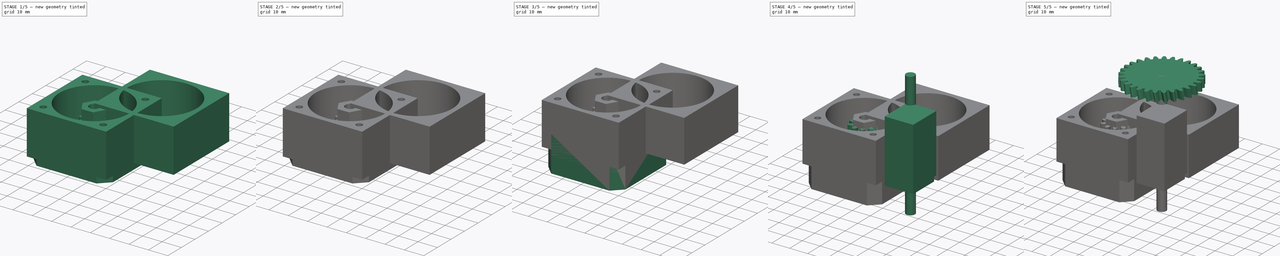
[diagram: build sequence overview — one tinted view per stage of 5, left to right]
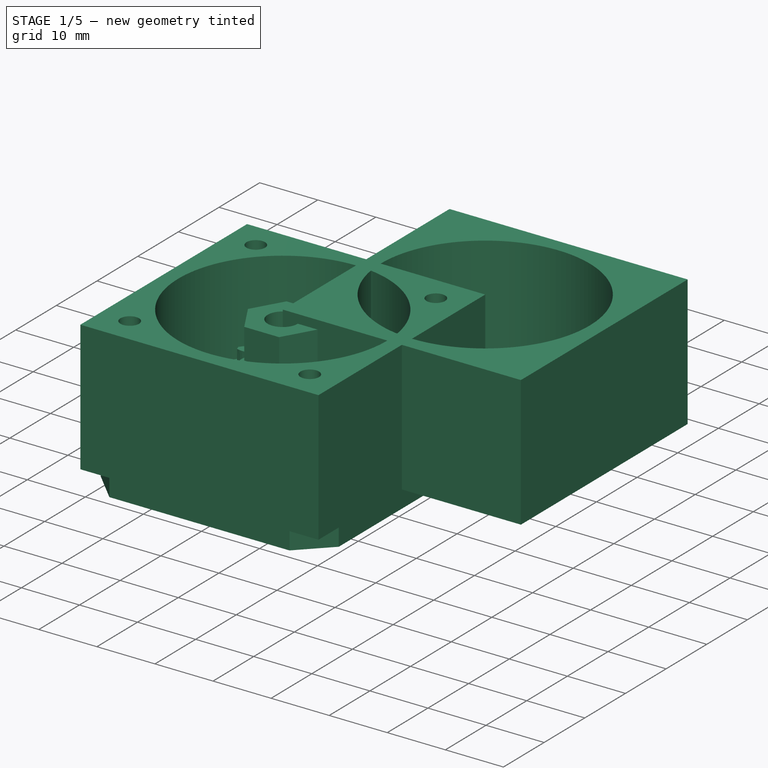
[diagram: stage 1 of 5 — iso view after this stage's code; geometry added in this stage tinted green]
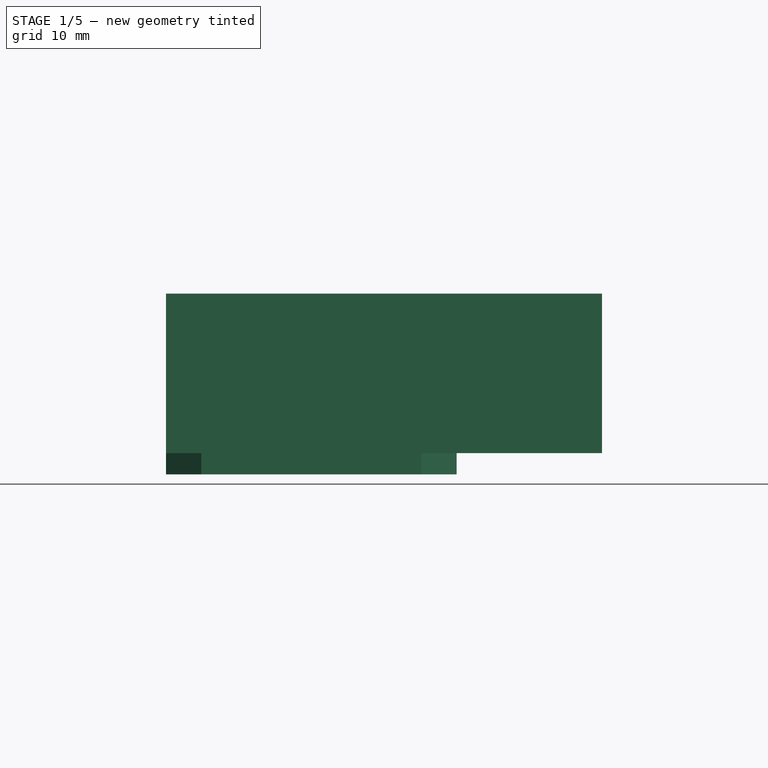
[diagram: stage 1 of 5 — front view after this stage's code; geometry added in this stage tinted green]
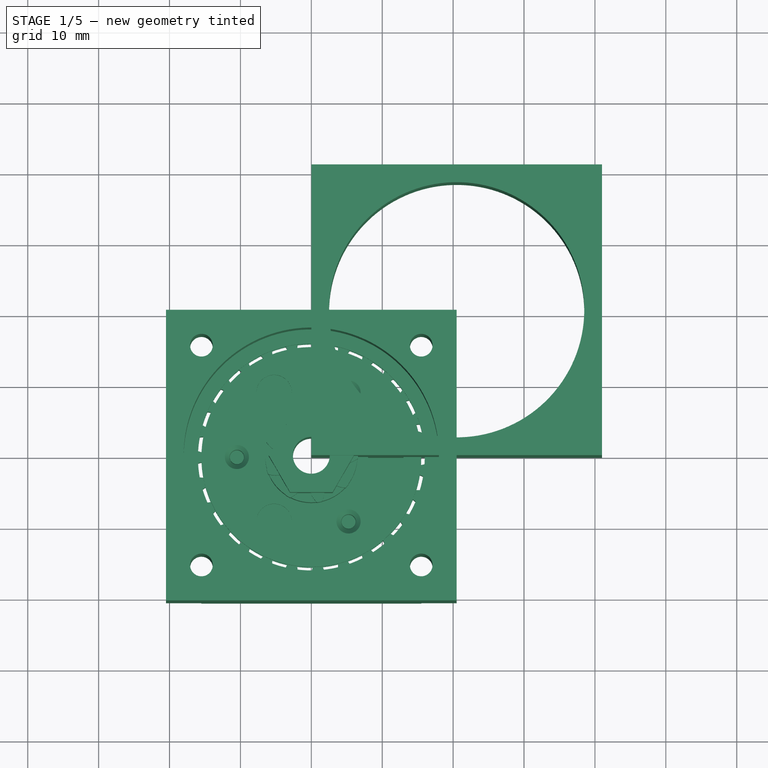
[diagram: stage 1 of 5 — top view after this stage's code; geometry added in this stage tinted green]
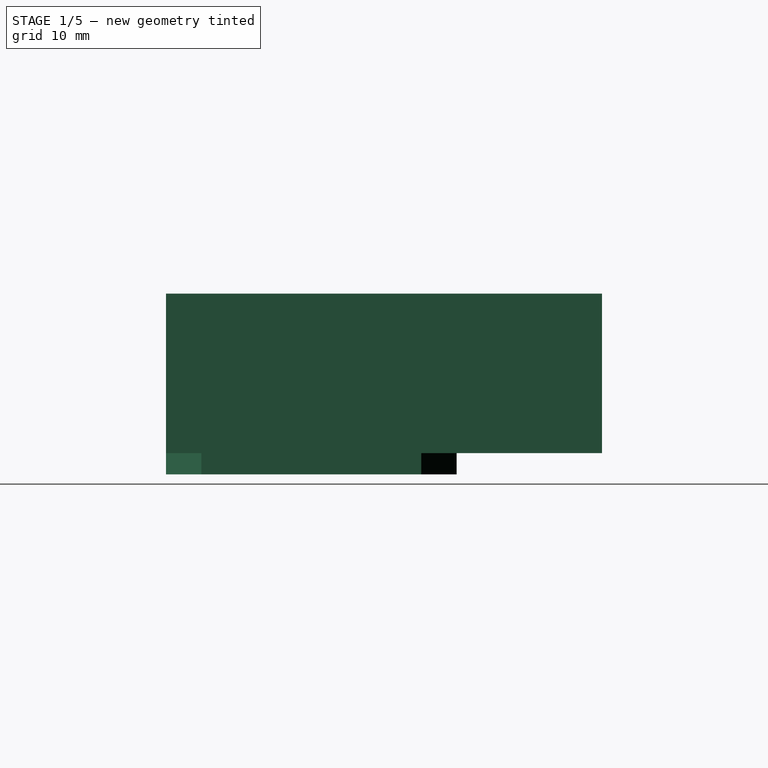
[diagram: stage 1 of 5 — right view after this stage's code; geometry added in this stage tinted green]
FCSTD DOCUMENT  (FreeCAD 0.17R12284 (Git))
Label: planetary_gear_v1
License: All rights reserved
LicenseURL: http://en.wikipedia.org/wiki/All_rights_reserved
objects: Part::Feature×152, Part::Cylinder×110, Part::MultiFuse×89, Part::Cut×69, Part::FeaturePython×12, App::Part×9, Part::Extrusion×8, Part::Box×7, Part::RegularPolygon×1, Sketcher::SketchObject×1, Part::Chamfer×1
note: 450 computed .brp shape members not serialized (recipe doc carries the construction recipe); baked Part::Feature solids carry a one-line shape summary decoded from their .brp

FEATURE [App::Part] Part004
  Group = -> [Cut044,Cut050,Cylinder014005098,Cylinder014005100,Cylinder014005099,Cylinder014005101,Cylinder014005105,Cylinder014005108,Cylinder014005109,Screw_solid034,Cylinder014005104,Screw_solid038,Cylinder014005102,Screw_solid036,Fusion059,Fusion058,Fusion065,Fusion062,Fusion064,Cut008_solid014,Cut008_solid012,Cut008_solid013,Screw_solid033,Cylinder014005107,Cylinder014005103,Screw_solid037,Screw_solid035,+26 more]
  License = CC BY 3.0
  LicenseURL = http://creativecommons.org/licenses/by/3.0/
  Origin = -> Origin004
  Placement = pos=(0,0,31.5) rot=(0,0,1;0rad)
FEATURE [Part::Feature] Cut007_solid006  label="Sun007"
  Placement = pos=(0,0,10.5) rot=(0,0,1;0rad)
  shape: bbox 12.9 x 13.1 x 5 mm, 57 faces (baked)
FEATURE [Part::FeaturePython] InvoluteGear013  # WARN: FeaturePython — macro-defined, semantics opaque (R4)
  backlash = 0
  beta = 0
  clearance = 0.25
  double_helix = false
  head = 0
  height = 5.5
  module = 1.2
  numpoints = 6
  pressure_angle = 20
  reversed_backlash = false
  shift = 0
  simple = false
  teeth = 27
  undercut = false
FEATURE [Part::Feature] Cylinder014005118  label="Válec119"
  shape: bbox 5 x 5 x 7 mm, 3 faces (baked)
FEATURE [Part::Cylinder] Cylinder014005119  label="Válec120"
  Angle = 360
  AttacherType = Attacher::AttachEngine3D
  Height = 1.5
  Radius = 20
FEATURE [Part::Cylinder] Cylinder014005120  label="Válec121"
  Angle = 360
  AttacherType = Attacher::AttachEngine3D
  Height = 5.5
  Radius = 20
FEATURE [Part::Cut] Cut051  label="ring 006"
  Base = -> Cylinder014005120
  Tool = -> InvoluteGear013
FEATURE [Part::Cylinder] Cylinder014005121  label="Válec122"
  Angle = 360
  AttacherType = Attacher::AttachEngine3D
  Height = 1.5
  Radius = 16
FEATURE [Part::Cylinder] Cylinder014005122  label="Válec123"
  Angle = 360
  AttacherType = Attacher::AttachEngine3D
  Height = 10
  Placement = pos=(10.5,0,0) rot=(0,0,1;0rad)
  Radius = 8
FEATURE [Part::Cylinder] Cylinder014005123  label="Válec124"
  Angle = 360
  AttacherType = Attacher::AttachEngine3D
  Height = 1.5
  Radius = 16
FEATURE [Part::Cylinder] Cylinder014005124  label="Válec125"
  Angle = 360
  AttacherType = Attacher::AttachEngine3D
  Height = 1.5
  Radius = 20
FEATURE [Part::Cut] Cut053  label="Ring012"
  Base = -> Cylinder014005124
  Placement = pos=(0,0,-1.5) rot=(0,0,1;0rad)
  Tool = -> Cylinder014005123
FEATURE [Part::Cylinder] Cylinder014005125  label="Unasec vrch007"
  Angle = 360
  AttacherType = Attacher::AttachEngine3D
  Height = 1.5
  Placement = pos=(0,0,5.5) rot=(0,0,1;0rad)
  Radius = 15.5
FEATURE [Part::Cylinder] Cylinder014005126  label="Válec126"
  Angle = 360
  AttacherType = Attacher::AttachEngine3D
  Height = 4
  Placement = pos=(0,0,7) rot=(0,0,1;0rad)
  Radius = 6.5
FEATURE [Part::Cylinder] Cylinder014005127  label="Válec127"
  Angle = 360
  AttacherType = Attacher::AttachEngine3D
  Height = 18
  Radius = 2.6
FEATURE [Part::Feature] Cylinder014005128  label="Válec128"
  Placement = pos=(0,0,0) rot=(0,0,1;2.0944rad)
  shape: bbox 5 x 5 x 7 mm, 3 faces (baked)
FEATURE [Part::Feature] Screw_solid039  label="M2x4-Screw (Solid)039"
  Placement = pos=(0,0,0) rot=(0,0,1;1.0472rad)
  shape: bbox 3.6 x 3.6 x 4 mm, 12 faces (baked)
FEATURE [Part::Feature] Screw_solid040  label="M2x4-Screw (Solid)040"
  Placement = pos=(0,0,0) rot=(0,0,1;3.14159rad)
  shape: bbox 3.6 x 3.6 x 4 mm, 12 faces (baked)
FEATURE [Part::Feature] Screw_solid041  label="M2x4-Screw (Solid)041"
  Placement = pos=(0,0,0) rot=(0,0,-1;1.0472rad)
  shape: bbox 3.6 x 3.6 x 4 mm, 12 faces (baked)
FEATURE [Part::Feature] Cylinder014005129  label="Válec129"
  shape: bbox 5 x 5 x 7 mm, 3 faces (baked)
FEATURE [Part::Feature] Cylinder014005130  label="Válec130"
  Placement = pos=(0,0,0) rot=(0,0,1;4.18879rad)
  shape: bbox 5 x 5 x 7 mm, 3 faces (baked)
FEATURE [Part::Feature] Screw_solid042  label="M2x4-Screw (Solid)042"
  Placement = pos=(0,0,0) rot=(0,0,1;3.14159rad)
  shape: bbox 3.6 x 3.6 x 4 mm, 12 faces (baked)
FEATURE [Part::Feature] Cylinder014005131  label="Válec131"
  Placement = pos=(0,0,0) rot=(0,0,1;4.18879rad)
  shape: bbox 16 x 16 x 10 mm, 3 faces (baked)
FEATURE [Part::Feature] Cylinder014005132  label="Válec132"
  Placement = pos=(0,0,0) rot=(0,0,1;4.18879rad)
  shape: bbox 5 x 5 x 7 mm, 3 faces (baked)
FEATURE [Part::MultiFuse] Fusion075
  Shapes = -> [Cylinder014005132,Cylinder014005118,Cylinder014005128]
FEATURE [Part::Feature] Cut008_solid015  label="Planet016"
  Placement = pos=(0,0,0) rot=(0,0,1;2.0944rad)
  shape: bbox 12.9 x 13.1 x 5 mm, 57 faces (baked)
FEATURE [Part::Cut] Cut054  label="Ring013"
  Base = -> Cylinder014005119
  Placement = pos=(0,0,5.5) rot=(0,0,1;0rad)
  Tool = -> Cylinder014005121
FEATURE [Part::MultiFuse] Fusion076  label="Ring zaklad Fin005"
  Shapes = -> [Cut051,Cut054,Cut053]
FEATURE [Part::Cylinder] Cylinder014005133  label="unasec stred006"
  Angle = 360
  AttacherType = Attacher::AttachEngine3D
  Height = 7
  Placement = pos=(0,0,-1.5) rot=(0,0,1;0rad)
  Radius = 13.5
FEATURE [Part::Cylinder] Cylinder014005134  label="unasec spodek013"
  Angle = 360
  AttacherType = Attacher::AttachEngine3D
  Height = 1.5
  Placement = pos=(0,0,-1.5) rot=(0,0,1;0rad)
  Radius = 15.5
FEATURE [Part::MultiFuse] Fusion077
  Shapes = -> [Cylinder014005133,Cylinder014005134]
FEATURE [Part::Cylinder] Cylinder014005135  label="Válec133"
  Angle = 360
  AttacherType = Attacher::AttachEngine3D
  Height = 7
  Radius = 2.6
FEATURE [Part::MultiFuse] Fusion079
  Placement = pos=(0,0,1) rot=(0,0,1;0rad)
  Shapes = -> [Fusion075,Cylinder014005135]
FEATURE [Part::Cylinder] Cylinder014005136  label="Válec134"
  Angle = 360
  AttacherType = Attacher::AttachEngine3D
  Height = 10
  Placement = pos=(0,0,-3) rot=(0,0,1;0rad)
  Radius = 7
FEATURE [Part::Feature] Cylinder014005138  label="Válec136"
  Placement = pos=(0,0,0) rot=(0,0,1;2.0944rad)
  shape: bbox 16 x 16 x 10 mm, 3 faces (baked)
FEATURE [Part::MultiFuse] Fusion069
  Shapes = -> [Cylinder014005136,Cylinder014005122,Cylinder014005131,Cylinder014005138]
FEATURE [Part::Cut] Cut052  label="unasec spodek012"
  Base = -> Fusion077
  Tool = -> Fusion069
FEATURE [Part::Feature] Cut005_solid001_cs006
  Placement = pos=(0,0,-11.25) rot=(0,0,1;0rad)
  shape: bbox 41 x 41 x 3e-07 mm, 0 faces, 0 solids (baked)
FEATURE [Part::Extrusion] Extrude005  label="box005"
  Base = -> Cut005_solid001_cs006
  Dir = (0,0,1)
  DirMode = 2
  FaceMakerClass = Part::FaceMakerBullseye
  LengthFwd = 10.5
  LengthRev = 0
  Placement = pos=(0,0,-3) rot=(0,0,1;0rad)
  Solid = true
  Symmetric = false
FEATURE [Part::Feature] Screw_solid043  label="M2x4-Screw (Solid)043"
  Placement = pos=(0,0,0) rot=(0,0,-1;1.0472rad)
  shape: bbox 3.6 x 3.6 x 4 mm, 12 faces (baked)
FEATURE [Part::MultiFuse] Fusion071  label="srouby014"
  Placement = pos=(0,0,0.5) rot=(0,0,1;0rad)
  Shapes = -> [Screw_solid039,Screw_solid043,Screw_solid040]
FEATURE [Part::Cut] Cut057  label="unasec vrch007"
  Base = -> Cylinder014005125
  Tool = -> Fusion071
FEATURE [Part::Cut] Cut058  label="Unasec Vrch zaklad007"
  Base = -> Cut057
  Tool = -> Fusion079
FEATURE [Part::MultiFuse] Fusion070  label="unasec vrhch 007"
  Shapes = -> [Cut058,Cut007_solid006,Cylinder014005126]
FEATURE [Part::Cut] Cut055  label="Unasec + Sun005 old"
  Base = -> Fusion070
  Tool = -> Cylinder014005127
FEATURE [Part::Feature] Cut008_solid017  label="Planet018"
  shape: bbox 12.9 x 13.1 x 5 mm, 57 faces (baked)
FEATURE [Part::Feature] Screw_solid044  label="M2x4-Screw (Solid)044"
  Placement = pos=(0,0,0) rot=(0,0,1;1.0472rad)
  shape: bbox 3.6 x 3.6 x 4 mm, 12 faces (baked)
FEATURE [Part::MultiFuse] Fusion073  label="srouby015"
  Shapes = -> [Screw_solid044,Screw_solid041,Screw_solid042]
FEATURE [Part::Cut] Cut056  label="Uasec spodek006"
  Base = -> Cut052
  Tool = -> Fusion073
FEATURE [Part::Feature] Cut061001  label="SUN I Final"
  shape: bbox 24 x 24 x 12.25 mm, 99 faces (baked)
FEATURE [App::Part] Part001
  Group = -> [Cut008_solid,Cut008_solid001,Cut008_solid002,Cylinder010,Cylinder,Cylinder013,Fusion001,Fusion002,Cylinder014005006,Cylinder014005005,Cylinder014002,Cylinder014001,Cylinder014005004,Cylinder011,Cut004,Cut006,Screw_solid005,Screw_solid003,Screw_solid004,Fusion006,Fusion004,Fusion008,Cylinder014005034,Cylinder014005035,Cut007_solid001,Cut012,Cut011,Screw_solid007,Screw_solid008,Cylinder014005014,+29 more]
  License = CC BY 3.0
  LicenseURL = http://creativecommons.org/licenses/by/3.0/
  Origin = -> Origin001
FEATURE [Part::Cylinder] Cylinder014005145  label="Válec143"
  Angle = 360
  AttacherType = Attacher::AttachEngine3D
  Height = 7
  Radius = 2.6
FEATURE [Part::Cylinder] Cylinder014005146  label="Unasec vrch008"
  Angle = 360
  AttacherType = Attacher::AttachEngine3D
  Height = 1.5
  Placement = pos=(0,0,5.5) rot=(0,0,1;0rad)
  Radius = 15.5
FEATURE [Part::Cylinder] Cylinder014005147  label="Válec144"
  Angle = 360
  AttacherType = Attacher::AttachEngine3D
  Height = 6
  Placement = pos=(0,0,7) rot=(0,0,1;0rad)
  Radius = 6.5
FEATURE [Part::Cylinder] Cylinder014005148  label="Válec145"
  Angle = 360
  AttacherType = Attacher::AttachEngine3D
  Height = 22
  Radius = 2.6
FEATURE [Part::Feature] Screw_solid045  label="M2x4-Screw (Solid)045"
  Placement = pos=(0,0,0) rot=(0,0,1;3.14159rad)
  shape: bbox 3.6 x 3.6 x 4 mm, 12 faces (baked)
FEATURE [Part::Feature] Screw_solid046  label="M2x4-Screw (Solid)046"
  Placement = pos=(0,0,0) rot=(0,0,1;1.0472rad)
  shape: bbox 3.6 x 3.6 x 4 mm, 12 faces (baked)
FEATURE [Part::Feature] Screw_solid047  label="M2x4-Screw (Solid)047"
  Placement = pos=(0,0,0) rot=(0,0,-1;1.0472rad)
  shape: bbox 3.6 x 3.6 x 4 mm, 12 faces (baked)
FEATURE [Part::MultiFuse] Fusion085  label="srouby016"
  Placement = pos=(0,0,0.5) rot=(0,0,1;0rad)
  Shapes = -> [Screw_solid046,Screw_solid047,Screw_solid045]
FEATURE [Part::Feature] Cylinder014005149  label="Válec146"
  Placement = pos=(0,0,0) rot=(0,0,1;2.0944rad)
  shape: bbox 5 x 5 x 7 mm, 3 faces (baked)
FEATURE [Part::Feature] Cylinder014005150  label="Válec147"
  shape: bbox 5 x 5 x 7 mm, 3 faces (baked)
FEATURE [Part::Feature] Cylinder014005151  label="Válec148"
  Placement = pos=(0,0,0) rot=(0,0,1;4.18879rad)
  shape: bbox 5 x 5 x 7 mm, 3 faces (baked)
FEATURE [Part::MultiFuse] Fusion087
  Shapes = -> [Cylinder014005151,Cylinder014005150,Cylinder014005149]
FEATURE [Part::MultiFuse] Fusion088
  Placement = pos=(0,0,1) rot=(0,0,1;0rad)
  Shapes = -> [Fusion087,Cylinder014005145]
FEATURE [Part::Cut] Cut061004  label="unasec vrch008"
  Base = -> Cylinder014005146
  Tool = -> Fusion085
FEATURE [Part::Cut] Cut061003  label="Unasec Vrch zaklad008"
  Base = -> Cut061004
  Tool = -> Fusion088
FEATURE [Part::RegularPolygon] RegularPolygon  label="Pravidelný n-úhelník"
  AttacherType = Attacher::AttachEngine3D
  Circumradius = 6
  Polygon = 6
FEATURE [Part::Extrusion] Extrude006
  Base = -> RegularPolygon
  Dir = (0,0,1)
  DirMode = 2
  FaceMakerClass = Part::FaceMakerBullseye
  LengthFwd = 8
  LengthRev = 0
  Placement = pos=(0,0,13) rot=(0,0,1;0rad)
  Solid = true
  Symmetric = false
FEATURE [Part::MultiFuse] Fusion089
  Shapes = -> [Cut061003,Cylinder014005147,Extrude006]
FEATURE [Sketcher::SketchObject] Sketch001
  MapMode = 45
  Placement = pos=(0,0,5.10235) rot=(0,0,1;0rad)
  sketch-geometry (7):
    g0: LineSegment StartX=5 StartY=0 StartZ=0 EndX=2.5 EndY=4.33013 EndZ=0
    g1: LineSegment StartX=2.5 StartY=4.33013 StartZ=0 EndX=-2.5 EndY=4.33013 EndZ=0
    g2: LineSegment StartX=-2.5 StartY=4.33013 StartZ=0 EndX=-5 EndY=0 EndZ=0
    g3: LineSegment StartX=-5 StartY=0 StartZ=0 EndX=-2.5 EndY=-4.33013 EndZ=0
    g4: LineSegment StartX=-2.5 StartY=-4.33013 StartZ=0 EndX=2.5 EndY=-4.33013 EndZ=0
    g5: LineSegment StartX=2.5 StartY=-4.33013 StartZ=0 EndX=5 EndY=0 EndZ=0
    g6: Circle [constr] CenterX=0 CenterY=0 CenterZ=0 NormalX=0 NormalY=0 NormalZ=1 AngleXU=0 Radius=5
  constraints (14):
    c: Coincident(g0,g1)
    c: Coincident(g1,g2)
    c: Coincident(g2,g3)
    c: Coincident(g3,g4)
    c: Coincident(g4,g5)
    c: Coincident(g5,g0)
    c: Equal(g0, g1-g5) x5
    c: PointOnObject(g0,g6)
    c: PointOnObject(g1,g6)
    c: PointOnObject(g2,g6)
    c: PointOnObject(g3,g6)
    c: PointOnObject(g4,g6)
    c: PointOnObject(g5,g6)
    c: PointOnObject(g6,g-1)
FEATURE [Part::Extrusion] Extrude007
  Base = -> Sketch001
  Dir = (0,0,1)
  DirMode = 2
  FaceMakerClass = Part::FaceMakerBullseye
  LengthFwd = 5
  LengthRev = 0
  Placement = pos=(0,0,0.25) rot=(0,0,1;0rad)
  Solid = true
  Symmetric = false
FEATURE [Part::MultiFuse] Fusion090
  Shapes = -> [Cylinder014005148,Extrude007]
FEATURE [Part::Cut] Cut061005  label="unasec top"
  Base = -> Fusion089
  Tool = -> Fusion090
FEATURE [App::Part] Part005
  Group = -> [Cut052,Cut056,Cylinder014005136,Cylinder014005134,Cylinder014005133,Cylinder014005122,Cylinder014005131,Cylinder014005137,Cylinder014005138,Screw_solid042,Cylinder014005129,Screw_solid044,Cylinder014005130,Screw_solid041,Fusion069,Fusion077,Fusion073,Fusion072,Fusion074,Cut008_solid017,Cut008_solid015,Cut008_solid016,Screw_solid039,Cylinder014005118,Cylinder014005128,Screw_solid043,Screw_solid040,+48 more]
  License = CC BY 3.0
  LicenseURL = http://creativecommons.org/licenses/by/3.0/
  Origin = -> Origin005
  Placement = pos=(0,0,42) rot=(0,0,1;0rad)
FEATURE [App::Part] Part007  label="GearBOX 1024>1"
  Group = -> [Part001,Part,Part002,Part004,Part005]
  License = CC BY 3.0
  LicenseURL = http://creativecommons.org/licenses/by/3.0/
  Origin = -> Origin007
FEATURE [Part::Cylinder] Cylinder014005152  label="Válec149"
  Angle = 360
  AttacherType = Attacher::AttachEngine3D
  Height = 22.5
  Radius = 18.25
FEATURE [Part::Cylinder] Cylinder003  label="Válec003"
  Angle = 360
  AttacherType = Attacher::AttachEngine3D
  Height = 22.5
  Placement = pos=(-15.5,15.5,0) rot=(0,0,1;0rad)
  Radius = 1.6
FEATURE [Part::Cylinder] Cylinder002  label="Válec002"
  Angle = 360
  AttacherType = Attacher::AttachEngine3D
  Height = 22.5
  Placement = pos=(15.5,15.5,0) rot=(0,0,1;0rad)
  Radius = 1.6
FEATURE [Part::Box] Box009  label="Krychle008"
  AttacherType = Attacher::AttachEngine3D
  Height = 22.5
  Length = 41
  Width = 41
FEATURE [Part::Cylinder] Cylinder014005153  label="Válec150"
  Angle = 360
  AttacherType = Attacher::AttachEngine3D
  Height = 22.5
  Placement = pos=(-15.5,-15.5,0) rot=(0,0,1;0rad)
  Radius = 1.6
FEATURE [Part::Cylinder] Cylinder004  label="Válec004"
  Angle = 360
  AttacherType = Attacher::AttachEngine3D
  Height = 22.5
  Placement = pos=(15.5,-15.5,0) rot=(0,0,1;0rad)
  Radius = 1.6
FEATURE [Part::Cylinder] Cylinder014005154  label="Válec151"
  Angle = 360
  AttacherType = Attacher::AttachEngine3D
  Height = 22.5
  Placement = pos=(20.5,20.5,0) rot=(0,0,1;0rad)
  Radius = 18
FEATURE [Part::Cut] Cut061006
  Base = -> Box009
  Tool = -> Cylinder014005154
FEATURE [Part::Feature] Cut005_solid002  label="Nema-distanceII002"
  shape: bbox 41 x 41 x 22.5 mm, 15 faces (baked)
FEATURE [Part::Feature] Cut_solid  label="red"
  Placement = pos=(-20.5,-20.5,0) rot=(0,0,1;0rad)
  shape: bbox 41 x 41 x 22.5 mm, 7 faces (baked)
FEATURE [Part::Cut] Cut001
  Base = -> Cut_solid
  Tool = -> Cylinder002
FEATURE [Part::Cut] Cut061009
  Base = -> Cut001
  Tool = -> Cylinder003
FEATURE [Part::Cut] Cut061010
  Base = -> Cut061009
  Tool = -> Cylinder004
FEATURE [Part::Cut] Cut061007
  Base = -> Cut061010
  Tool = -> Cylinder014005153
FEATURE [Part::Feature] Cut004_solid001  label="RedukceB"
  shape: bbox 41 x 41 x 22.5 mm, 11 faces (baked)
FEATURE [Part::Feature] Cut004_solid001001  label="RedukceB001"
  shape: bbox 41 x 41 x 22.5 mm, 11 faces (baked)
FEATURE [Part::Chamfer] Chamfer
  Base = -> Cut004_solid001001
  Edges = 4 edges r=5: [Edge1,Edge3,Edge6,Edge16]
FEATURE [Part::Feature] Cut004_solid  label="redukce2"
  shape: bbox 41 x 41 x 22.5 mm, 11 faces (baked)
FEATURE [Part::Feature] Chamfer_solid  label="NEMA-distance"
  shape: bbox 41 x 41 x 22.5 mm, 15 faces (baked)
FEATURE [Part::Cut] Cut061008
  Base = -> Chamfer_solid
  Tool = -> Cylinder014005152
FEATURE [Part::Feature] Cut005_solid  label="Nema-distanceII"
  shape: bbox 41 x 41 x 22.5 mm, 15 faces (baked)
FEATURE [App::Part] Part008  label="nema DISTANCE"
  Group = -> [Cut004_solid001,Cut001,Cut061009,Cut061010,Cylinder003,Cylinder002,Cylinder014005153,Cylinder004,Cut_solid,Cut061007,Cut004_solid001001,Chamfer,Cylinder014005152,Chamfer_solid,Cut061008,Box009,Cylinder014005154,Cut061006,Cut005_solid,Cut005_solid002,Cut004_solid]
  License = CC BY 3.0
  LicenseURL = http://creativecommons.org/licenses/by/3.0/
  Origin = -> Origin008
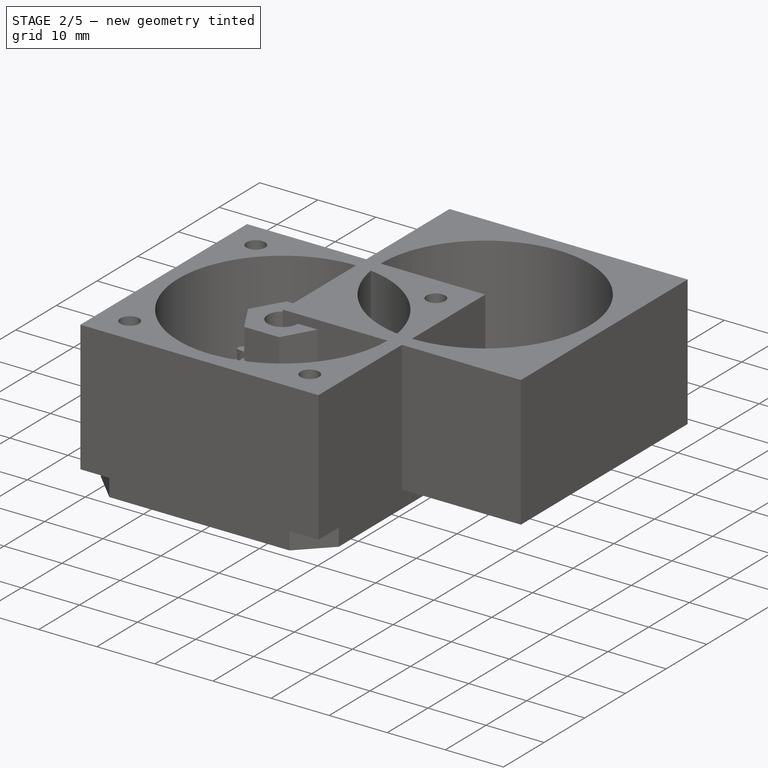
[diagram: stage 2 of 5 — iso view after this stage's code; geometry added in this stage tinted green]
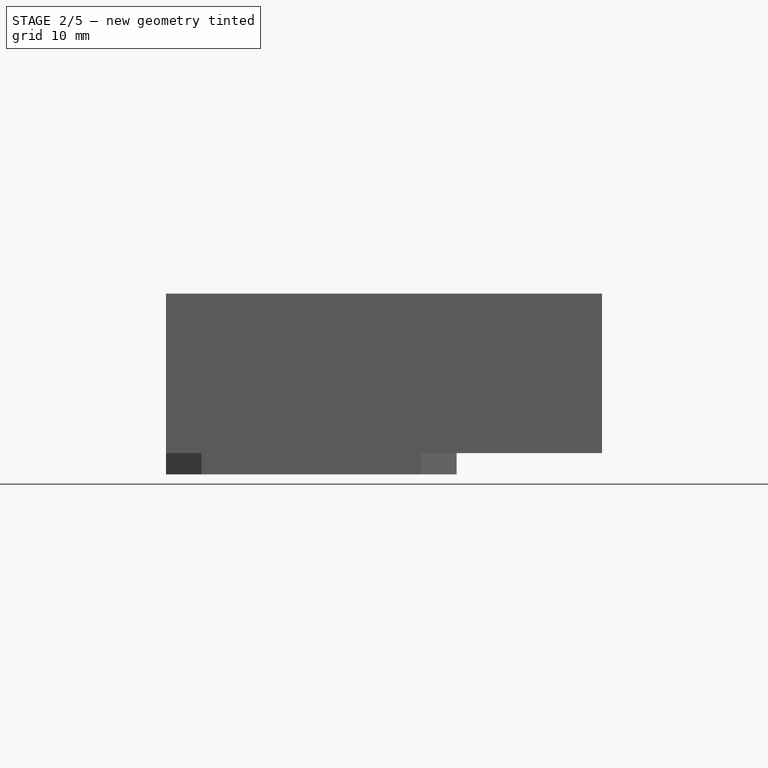
[diagram: stage 2 of 5 — front view after this stage's code; geometry added in this stage tinted green]
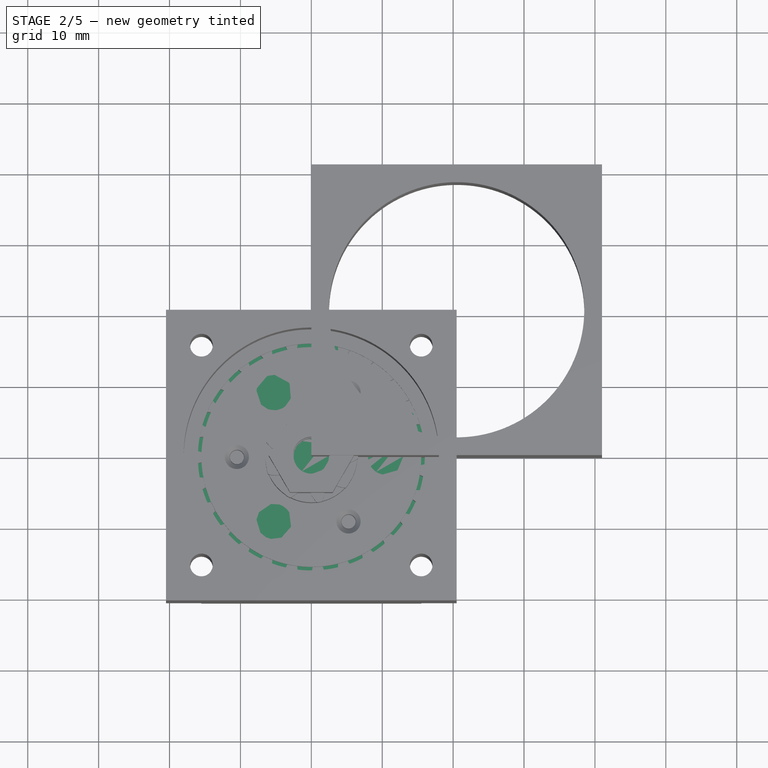
[diagram: stage 2 of 5 — top view after this stage's code; geometry added in this stage tinted green]
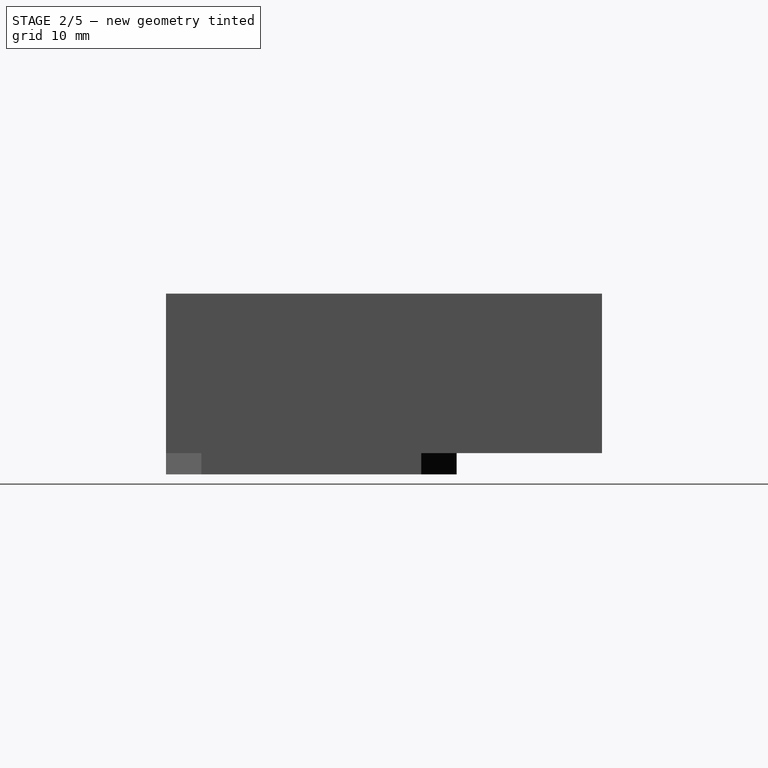
[diagram: stage 2 of 5 — right view after this stage's code; geometry added in this stage tinted green]
FEATURE [Part::Feature] Screw_solid022  label="M2x4-Screw (Solid)022"
  Placement = pos=(0,0,0) rot=(0,0,1;3.14159rad)
  shape: bbox 3.6 x 3.6 x 4 mm, 12 faces (baked)
FEATURE [Part::Feature] Cylinder014005047  label="Válec059"
  shape: bbox 5 x 5 x 7 mm, 3 faces (baked)
FEATURE [Part::Feature] Cylinder014005048  label="Válec060"
  Placement = pos=(0,0,0) rot=(0,0,1;4.18879rad)
  shape: bbox 16 x 16 x 10 mm, 3 faces (baked)
FEATURE [Part::Feature] Cylinder014005049  label="Válec061"
  Placement = pos=(0,0,0) rot=(0,0,1;2.0944rad)
  shape: bbox 5 x 5 x 7 mm, 3 faces (baked)
FEATURE [Part::Feature] Cylinder014005050  label="Válec062"
  Placement = pos=(0,0,0) rot=(0,0,1;2.0944rad)
  shape: bbox 16 x 16 x 10 mm, 3 faces (baked)
FEATURE [Part::Feature] Cut008_solid008  label="Planet009"
  Placement = pos=(0,0,0) rot=(0,0,1;4.18879rad)
  shape: bbox 12.9 x 13.1 x 5 mm, 57 faces (baked)
FEATURE [Part::Feature] Cut005_solid001_cs003
  Placement = pos=(0,0,-11.25) rot=(0,0,1;0rad)
  shape: bbox 41 x 41 x 3e-07 mm, 0 faces, 0 solids (baked)
FEATURE [Part::Cylinder] Cylinder014005051  label="Válec063"
  Angle = 360
  AttacherType = Attacher::AttachEngine3D
  Height = 7
  Radius = 2.6
FEATURE [Part::Cylinder] Cylinder014005052  label="Válec064"
  Angle = 360
  AttacherType = Attacher::AttachEngine3D
  Height = 10
  Placement = pos=(0,0,-3) rot=(0,0,1;0rad)
  Radius = 7
FEATURE [Part::Cylinder] Cylinder014005053  label="unasec stred002"
  Angle = 360
  AttacherType = Attacher::AttachEngine3D
  Height = 7
  Placement = pos=(0,0,-1.5) rot=(0,0,1;0rad)
  Radius = 13.5
FEATURE [Part::Cylinder] Cylinder014005054  label="Válec065"
  Angle = 360
  AttacherType = Attacher::AttachEngine3D
  Height = 10
  Placement = pos=(10.5,0,0) rot=(0,0,1;0rad)
  Radius = 8
FEATURE [Part::MultiFuse] Fusion031
  Shapes = -> [Cylinder014005052,Cylinder014005054,Cylinder014005048,Cylinder014005050]
FEATURE [Part::Cylinder] Cylinder014005055  label="unasec spodek005"
  Angle = 360
  AttacherType = Attacher::AttachEngine3D
  Height = 1.5
  Placement = pos=(0,0,-1.5) rot=(0,0,1;0rad)
  Radius = 15.5
FEATURE [Part::MultiFuse] Fusion030
  Shapes = -> [Cylinder014005053,Cylinder014005055]
FEATURE [Part::Cut] Cut030  label="unasec spodek004"
  Base = -> Fusion030
  Tool = -> Fusion031
FEATURE [Part::Feature] Screw_solid023  label="M2x4-Screw (Solid)023"
  Placement = pos=(0,0,0) rot=(0,0,1;1.0472rad)
  shape: bbox 3.6 x 3.6 x 4 mm, 12 faces (baked)
FEATURE [Part::Cylinder] Cylinder014005057  label="Válec067"
  Angle = 360
  AttacherType = Attacher::AttachEngine3D
  Height = 4
  Placement = pos=(0,0,7) rot=(0,0,1;0rad)
  Radius = 6.5
FEATURE [Part::Cylinder] Cylinder014005061  label="Unasec vrch004"
  Angle = 360
  AttacherType = Attacher::AttachEngine3D
  Height = 1.5
  Placement = pos=(0,0,5.5) rot=(0,0,1;0rad)
  Radius = 15.5
FEATURE [Part::Cylinder] Cylinder014005063  label="Válec072"
  Angle = 360
  AttacherType = Attacher::AttachEngine3D
  Height = 1.5
  Radius = 20
FEATURE [Part::MultiFuse] Fusion033
  Shapes = -> [Cylinder014005045,Cylinder014005047,Cylinder014005049]
FEATURE [Part::MultiFuse] Fusion036  label="srouby007"
  Placement = pos=(0,0,0.5) rot=(0,0,1;0rad)
  Shapes = -> [Screw_solid018,Screw_solid019,Screw_solid020]
FEATURE [Part::Cut] Cut028  label="unasec vrch004"
  Base = -> Cylinder014005061
  Tool = -> Fusion036
FEATURE [Part::MultiFuse] Fusion038
  Shapes = -> [Cylinder014005046,Cylinder014005043,Cylinder014005044]
FEATURE [Part::MultiFuse] Fusion035
  Placement = pos=(0,0,1) rot=(0,0,1;0rad)
  Shapes = -> [Fusion038,Cylinder014005051]
FEATURE [Part::Cut] Cut027  label="Unasec Vrch zaklad004"
  Base = -> Cut028
  Tool = -> Fusion035
FEATURE [Part::MultiFuse] Fusion037  label="unasec vrhch 004"
  Shapes = -> [Cut027,Cut007_solid003,Cylinder014005057]
FEATURE [Part::MultiFuse] Fusion039  label="srouby008"
  Shapes = -> [Screw_solid023,Screw_solid021,Screw_solid022]
FEATURE [Part::Cut] Cut031  label="Uasec spodek002"
  Base = -> Cut030
  Tool = -> Fusion039
FEATURE [Part::MultiFuse] Fusion040  label="Unasec spdek final002"
  Shapes = -> [Cut031,Fusion033]
FEATURE [Part::Extrusion] Extrude002  label="box002"
  Base = -> Cut005_solid001_cs003
  Dir = (0,0,1)
  DirMode = 2
  FaceMakerClass = Part::FaceMakerBullseye
  LengthFwd = 10.5
  LengthRev = 0
  Placement = pos=(0,0,-3) rot=(0,0,1;0rad)
  Solid = true
  Symmetric = false
FEATURE [Part::FeaturePython] InvoluteGear012  # WARN: FeaturePython — macro-defined, semantics opaque (R4)
  backlash = 0
  beta = 0
  clearance = 0.25
  double_helix = false
  head = 0
  height = 5.5
  module = 1.2
  numpoints = 6
  pressure_angle = 20
  reversed_backlash = false
  shift = 0
  simple = false
  teeth = 27
  undercut = false
FEATURE [Part::Cylinder] Cylinder014005097  label="Válec101"
  Angle = 360
  AttacherType = Attacher::AttachEngine3D
  Height = 7
  Radius = 2.6
FEATURE [Part::Cylinder] Cylinder014005098  label="Válec102"
  Angle = 360
  AttacherType = Attacher::AttachEngine3D
  Height = 10
  Placement = pos=(0,0,-3) rot=(0,0,1;0rad)
  Radius = 7
FEATURE [Part::Cylinder] Cylinder014005099  label="unasec stred005"
  Angle = 360
  AttacherType = Attacher::AttachEngine3D
  Height = 7
  Placement = pos=(0,0,-1.5) rot=(0,0,1;0rad)
  Radius = 13.5
FEATURE [Part::Cylinder] Cylinder014005100  label="unasec spodek011"
  Angle = 360
  AttacherType = Attacher::AttachEngine3D
  Height = 1.5
  Placement = pos=(0,0,-1.5) rot=(0,0,1;0rad)
  Radius = 15.5
FEATURE [Part::MultiFuse] Fusion058
  Shapes = -> [Cylinder014005099,Cylinder014005100]
FEATURE [Part::Cylinder] Cylinder014005101  label="Válec103"
  Angle = 360
  AttacherType = Attacher::AttachEngine3D
  Height = 10
  Placement = pos=(10.5,0,0) rot=(0,0,1;0rad)
  Radius = 8
FEATURE [Part::Feature] Screw_solid033  label="M2x4-Screw (Solid)033"
  Placement = pos=(0,0,0) rot=(0,0,1;1.0472rad)
  shape: bbox 3.6 x 3.6 x 4 mm, 12 faces (baked)
FEATURE [Part::Feature] Cylinder014005102  label="Válec104"
  Placement = pos=(0,0,0) rot=(0,0,1;4.18879rad)
  shape: bbox 5 x 5 x 7 mm, 3 faces (baked)
FEATURE [Part::Feature] Screw_solid034  label="M2x4-Screw (Solid)034"
  Placement = pos=(0,0,0) rot=(0,0,1;3.14159rad)
  shape: bbox 3.6 x 3.6 x 4 mm, 12 faces (baked)
FEATURE [Part::Feature] Cylinder014005103  label="Válec105"
  Placement = pos=(0,0,0) rot=(0,0,1;2.0944rad)
  shape: bbox 5 x 5 x 7 mm, 3 faces (baked)
FEATURE [Part::Feature] Screw_solid035  label="M2x4-Screw (Solid)035"
  Placement = pos=(0,0,0) rot=(0,0,1;3.14159rad)
  shape: bbox 3.6 x 3.6 x 4 mm, 12 faces (baked)
FEATURE [Part::Feature] Screw_solid036  label="M2x4-Screw (Solid)036"
  Placement = pos=(0,0,0) rot=(0,0,-1;1.0472rad)
  shape: bbox 3.6 x 3.6 x 4 mm, 12 faces (baked)
FEATURE [Part::Feature] Cylinder014005104  label="Válec106"
  shape: bbox 5 x 5 x 7 mm, 3 faces (baked)
FEATURE [Part::Feature] Cylinder014005105  label="Válec107"
  Placement = pos=(0,0,0) rot=(0,0,1;4.18879rad)
  shape: bbox 16 x 16 x 10 mm, 3 faces (baked)
FEATURE [Part::Feature] Cylinder014005106  label="Válec108"
  Placement = pos=(0,0,0) rot=(0,0,1;4.18879rad)
  shape: bbox 5 x 5 x 7 mm, 3 faces (baked)
FEATURE [Part::Feature] Cut008_solid012  label="Planet013"
  Placement = pos=(0,0,0) rot=(0,0,1;2.0944rad)
  shape: bbox 12.9 x 13.1 x 5 mm, 57 faces (baked)
FEATURE [Part::Feature] Cut007_solid005  label="Sun006"
  Placement = pos=(0,0,10.5) rot=(0,0,1;0rad)
  shape: bbox 12.9 x 13.1 x 5 mm, 57 faces (baked)
FEATURE [Part::Feature] Cylinder014005107  label="Válec109"
  shape: bbox 5 x 5 x 7 mm, 3 faces (baked)
FEATURE [Part::Feature] Screw_solid037  label="M2x4-Screw (Solid)037"
  Placement = pos=(0,0,0) rot=(0,0,-1;1.0472rad)
  shape: bbox 3.6 x 3.6 x 4 mm, 12 faces (baked)
FEATURE [Part::Feature] Cylinder014005108  label="Válec110"
  Placement = pos=(0,0,0) rot=(0,0,1;2.0944rad)
  shape: bbox 5 x 5 x 7 mm, 3 faces (baked)
FEATURE [Part::MultiFuse] Fusion062
  Shapes = -> [Cylinder014005102,Cylinder014005104,Cylinder014005108]
FEATURE [Part::Feature] Cylinder014005109  label="Válec111"
  Placement = pos=(0,0,0) rot=(0,0,1;2.0944rad)
  shape: bbox 16 x 16 x 10 mm, 3 faces (baked)
FEATURE [Part::MultiFuse] Fusion059
  Shapes = -> [Cylinder014005098,Cylinder014005101,Cylinder014005105,Cylinder014005109]
FEATURE [Part::Cut] Cut044  label="unasec spodek010"
  Base = -> Fusion058
  Tool = -> Fusion059
FEATURE [Part::Feature] Cut008_solid013  label="Planet014"
  Placement = pos=(0,0,0) rot=(0,0,1;4.18879rad)
  shape: bbox 12.9 x 13.1 x 5 mm, 57 faces (baked)
FEATURE [Part::Feature] Cut008_solid014  label="Planet015"
  shape: bbox 12.9 x 13.1 x 5 mm, 57 faces (baked)
FEATURE [Part::Feature] Screw_solid038  label="M2x4-Screw (Solid)038"
  Placement = pos=(0,0,0) rot=(0,0,1;1.0472rad)
  shape: bbox 3.6 x 3.6 x 4 mm, 12 faces (baked)
FEATURE [Part::Feature] Cut005_solid001_cs005
  Placement = pos=(0,0,-11.25) rot=(0,0,1;0rad)
  shape: bbox 41 x 41 x 3e-07 mm, 0 faces, 0 solids (baked)
FEATURE [Part::Extrusion] Extrude004  label="box004"
  Base = -> Cut005_solid001_cs005
  Dir = (0,0,1)
  DirMode = 2
  FaceMakerClass = Part::FaceMakerBullseye
  LengthFwd = 10.5
  LengthRev = 0
  Placement = pos=(0,0,-3) rot=(0,0,1;0rad)
  Solid = true
  Symmetric = false
FEATURE [Part::Cylinder] Cylinder014005110  label="Válec112"
  Angle = 360
  AttacherType = Attacher::AttachEngine3D
  Height = 1.5
  Radius = 16
FEATURE [Part::Cylinder] Cylinder014005111  label="Válec113"
  Angle = 360
  AttacherType = Attacher::AttachEngine3D
  Height = 5.5
  Radius = 20
FEATURE [Part::Cut] Cut045  label="ring 005"
  Base = -> Cylinder014005111
  Tool = -> InvoluteGear012
FEATURE [Part::Cylinder] Cylinder014005112  label="Válec114"
  Angle = 360
  AttacherType = Attacher::AttachEngine3D
  Height = 1.5
  Radius = 20
FEATURE [Part::Cylinder] Cylinder014005113  label="Válec115"
  Angle = 360
  AttacherType = Attacher::AttachEngine3D
  Height = 1.5
  Radius = 16
FEATURE [Part::Cut] Cut043  label="Ring010"
  Base = -> Cylinder014005112
  Placement = pos=(0,0,5.5) rot=(0,0,1;0rad)
  Tool = -> Cylinder014005113
FEATURE [Part::Cylinder] Cylinder014005114  label="Válec116"
  Angle = 360
  AttacherType = Attacher::AttachEngine3D
  Height = 1.5
  Radius = 20
FEATURE [Part::Cut] Cut046  label="Ring011"
  Base = -> Cylinder014005114
  Placement = pos=(0,0,-1.5) rot=(0,0,1;0rad)
  Tool = -> Cylinder014005110
FEATURE [Part::MultiFuse] Fusion061  label="Ring zaklad Fin004"
  Shapes = -> [Cut045,Cut043,Cut046]
FEATURE [Part::MultiFuse] Fusion060  label="teloII003"
  Shapes = -> [Fusion061,Extrude004]
FEATURE [Part::Cylinder] Cylinder014005115  label="Unasec vrch006"
  Angle = 360
  AttacherType = Attacher::AttachEngine3D
  Height = 1.5
  Placement = pos=(0,0,5.5) rot=(0,0,1;0rad)
  Radius = 15.5
FEATURE [Part::Cylinder] Cylinder014005116  label="Válec117"
  Angle = 360
  AttacherType = Attacher::AttachEngine3D
  Height = 4
  Placement = pos=(0,0,7) rot=(0,0,1;0rad)
  Radius = 6.5
FEATURE [Part::Cylinder] Cylinder014005117  label="Válec118"
  Angle = 360
  AttacherType = Attacher::AttachEngine3D
  Height = 18
  Radius = 2.6
FEATURE [Part::MultiFuse] Fusion063
  Shapes = -> [Cylinder014005106,Cylinder014005107,Cylinder014005103]
FEATURE [Part::MultiFuse] Fusion065  label="srouby012"
  Shapes = -> [Screw_solid038,Screw_solid036,Screw_solid034]
FEATURE [Part::Cut] Cut050  label="Uasec spodek005"
  Base = -> Cut044
  Tool = -> Fusion065
FEATURE [Part::MultiFuse] Fusion064  label="Unasec spdek final004"
  Shapes = -> [Cut050,Fusion062]
FEATURE [Part::MultiFuse] Fusion066  label="srouby013"
  Placement = pos=(0,0,0.5) rot=(0,0,1;0rad)
  Shapes = -> [Screw_solid033,Screw_solid037,Screw_solid035]
FEATURE [Part::Cut] Cut049  label="unasec vrch006"
  Base = -> Cylinder014005115
  Tool = -> Fusion066
FEATURE [Part::MultiFuse] Fusion068
  Placement = pos=(0,0,1) rot=(0,0,1;0rad)
  Shapes = -> [Fusion063,Cylinder014005097]
FEATURE [Part::Cut] Cut048  label="Unasec Vrch zaklad006"
  Base = -> Cut049
  Tool = -> Fusion068
FEATURE [Part::MultiFuse] Fusion067  label="unasec vrhch 006"
  Shapes = -> [Cut048,Cut007_solid005,Cylinder014005116]
FEATURE [Part::Cut] Cut047  label="Unasec + Sun004"
  Base = -> Fusion067
  Tool = -> Cylinder014005117
FEATURE [Part::Feature] Cut008_solid016  label="Planet017"
  Placement = pos=(0,0,0) rot=(0,0,1;4.18879rad)
  shape: bbox 12.9 x 13.1 x 5 mm, 57 faces (baked)
FEATURE [Part::Feature] Cylinder014005137  label="Válec135"
  Placement = pos=(0,0,0) rot=(0,0,1;2.0944rad)
  shape: bbox 5 x 5 x 7 mm, 3 faces (baked)
FEATURE [Part::MultiFuse] Fusion072
  Shapes = -> [Cylinder014005130,Cylinder014005129,Cylinder014005137]
FEATURE [Part::MultiFuse] Fusion078  label="teloII004"
  Shapes = -> [Fusion076,Extrude005]
FEATURE [Part::MultiFuse] Fusion074  label="Unasec spdek final005"
  Shapes = -> [Cut056,Fusion072]
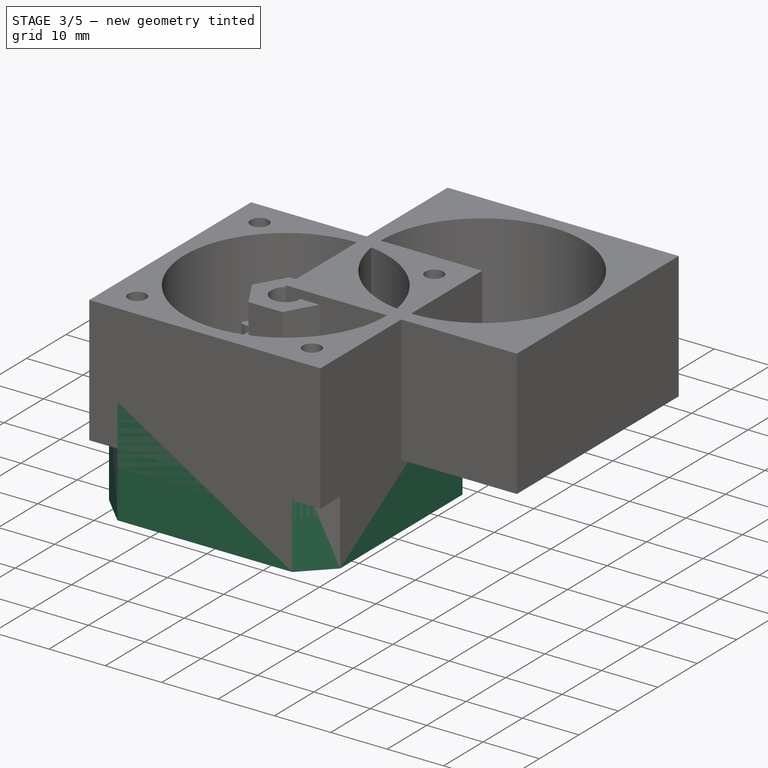
[diagram: stage 3 of 5 — iso view after this stage's code; geometry added in this stage tinted green]
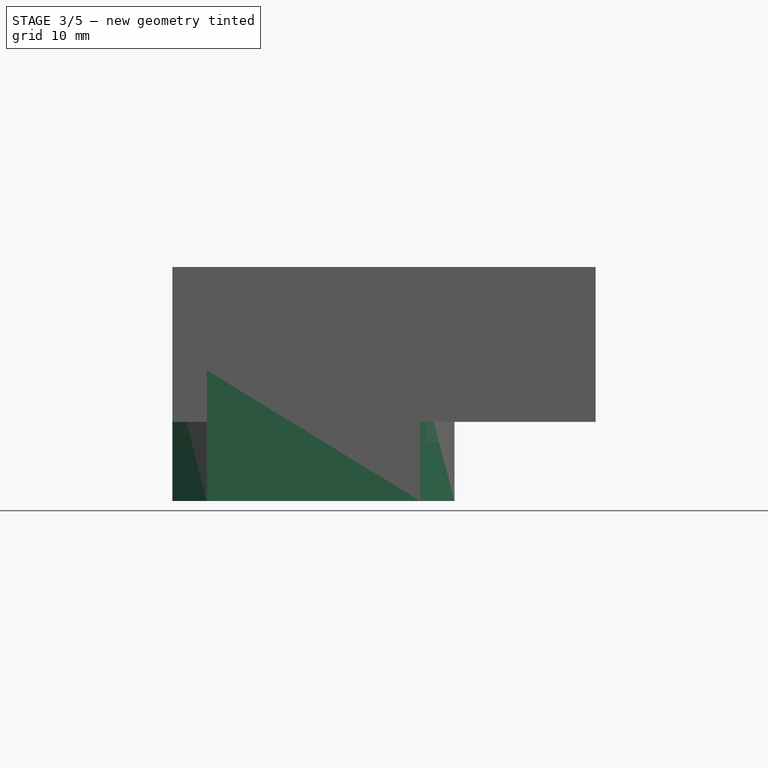
[diagram: stage 3 of 5 — front view after this stage's code; geometry added in this stage tinted green]
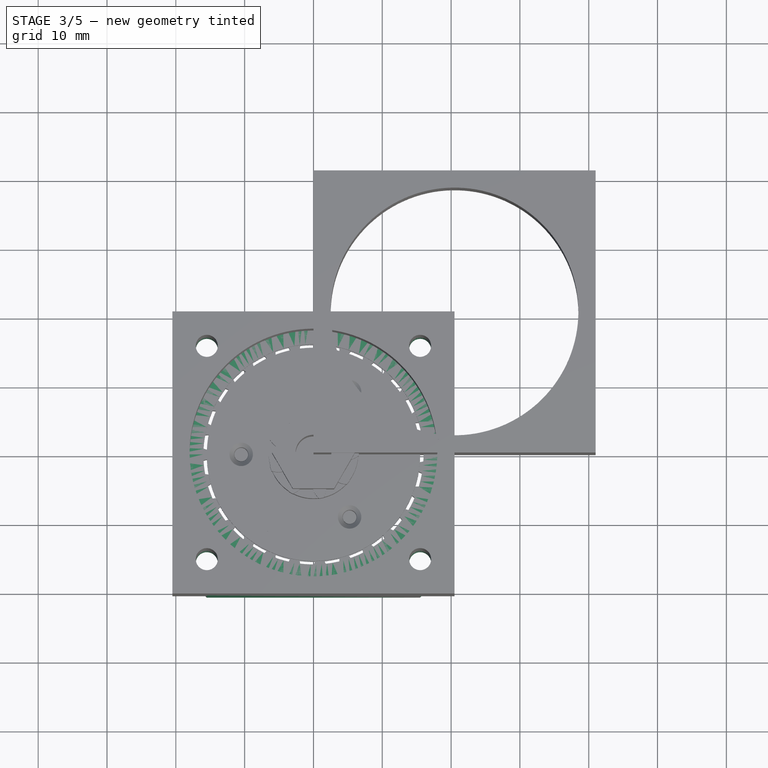
[diagram: stage 3 of 5 — top view after this stage's code; geometry added in this stage tinted green]
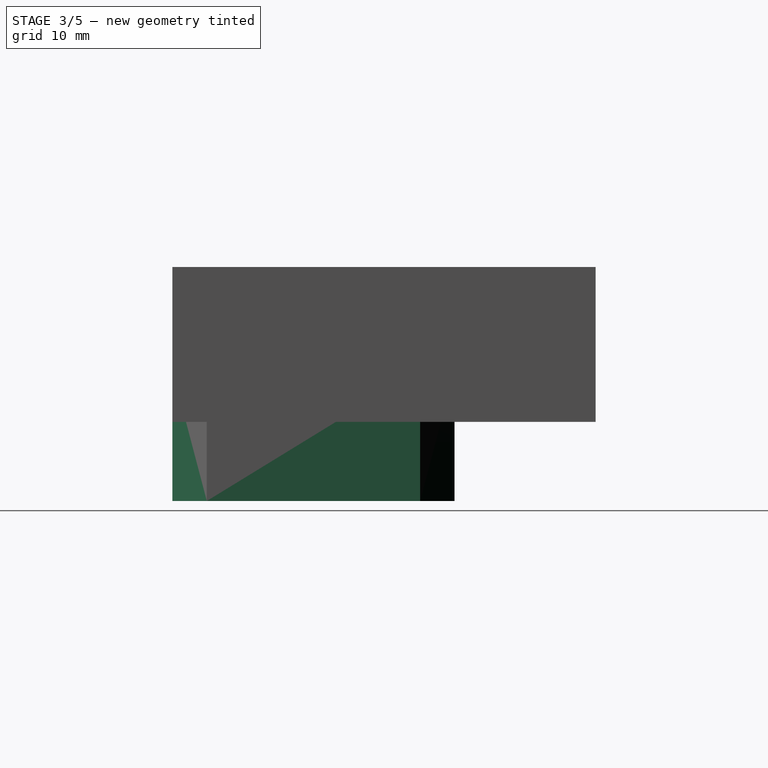
[diagram: stage 3 of 5 — right view after this stage's code; geometry added in this stage tinted green]
FEATURE [Part::Feature] Cut005_solid001_cs
  Placement = pos=(0,0,-11.25) rot=(0,0,1;0rad)
  shape: bbox 41 x 41 x 3e-07 mm, 0 faces, 0 solids (baked)
FEATURE [Part::Extrusion] Extrude  label="box"
  Base = -> Cut005_solid001_cs
  Dir = (0,0,1)
  DirMode = 2
  FaceMakerClass = Part::FaceMakerBullseye
  LengthFwd = 19
  LengthRev = 0
  Placement = pos=(0,0,-11.5) rot=(0,0,1;0rad)
  Solid = true
  Symmetric = false
FEATURE [Part::Feature] Cut005_solid001  label="Nema-distanceII001"
  Placement = pos=(0,0,-11.25) rot=(0,0,1;0rad)
  shape: bbox 41 x 41 x 22.5 mm, 15 faces (baked)
FEATURE [Part::Feature] Cut005_solid001_cs001
  Placement = pos=(0,0,-11.25) rot=(0,0,1;0rad)
  shape: bbox 41 x 41 x 3e-07 mm, 0 faces, 0 solids (baked)
FEATURE [Part::Cylinder] Cylinder005  label="Válec005"
  Angle = 360
  AttacherType = Attacher::AttachEngine3D
  Height = 5.5
  Radius = 20
FEATURE [Part::FeaturePython] InvoluteGear005  # WARN: FeaturePython — macro-defined, semantics opaque (R4)
  backlash = 0
  beta = 0
  clearance = 0.25
  double_helix = false
  head = 0
  height = 5.5
  module = 1.2
  numpoints = 6
  pressure_angle = 20
  reversed_backlash = false
  shift = 0
  simple = false
  teeth = 27
  undercut = false
FEATURE [Part::Cut] Cut002  label="ring 001"
  Base = -> Cylinder005
  Tool = -> InvoluteGear005
FEATURE [Part::Cylinder] Cylinder006  label="Válec006"
  Angle = 360
  AttacherType = Attacher::AttachEngine3D
  Height = 1.5
  Radius = 16
FEATURE [Part::Cylinder] Cylinder007  label="Válec007"
  Angle = 360
  AttacherType = Attacher::AttachEngine3D
  Height = 1.5
  Radius = 20
FEATURE [Part::Cut] Cut  label="Ring2"
  Base = -> Cylinder007
  Placement = pos=(0,0,5.5) rot=(0,0,1;0rad)
  Tool = -> Cylinder006
FEATURE [Part::Cylinder] Cylinder008  label="Válec008"
  Angle = 360
  AttacherType = Attacher::AttachEngine3D
  Height = 1.5
  Radius = 16
FEATURE [Part::Cylinder] Cylinder009  label="Válec009"
  Angle = 360
  AttacherType = Attacher::AttachEngine3D
  Height = 1.5
  Radius = 20
FEATURE [Part::Cut] Cut003  label="Ring003"
  Base = -> Cylinder009
  Placement = pos=(0,0,-1.5) rot=(0,0,1;0rad)
  Tool = -> Cylinder008
FEATURE [Part::MultiFuse] Fusion  label="Ring zaklad Fin"
  Shapes = -> [Cut002,Cut,Cut003]
FEATURE [Part::Cylinder] Cylinder010  label="unasec spodek"
  Angle = 360
  AttacherType = Attacher::AttachEngine3D
  Height = 1.5
  Placement = pos=(0,0,-1.5) rot=(0,0,1;0rad)
  Radius = 15.5
FEATURE [Part::Cylinder] Cylinder011  label="unasec stred"
  Angle = 360
  AttacherType = Attacher::AttachEngine3D
  Height = 7
  Placement = pos=(0,0,-1.5) rot=(0,0,1;0rad)
  Radius = 13.5
FEATURE [Part::Cylinder] Cylinder  label="Válec"
  Angle = 360
  AttacherType = Attacher::AttachEngine3D
  Height = 10
  Placement = pos=(0,0,-3) rot=(0,0,1;0rad)
  Radius = 7
FEATURE [Part::Cylinder] Cylinder013  label="Válec011"
  Angle = 360
  AttacherType = Attacher::AttachEngine3D
  Height = 10
  Placement = pos=(10.5,0,0) rot=(0,0,1;0rad)
  Radius = 8
FEATURE [Part::Feature] Cylinder014001  label="Válec013"
  Placement = pos=(0,0,0) rot=(0,0,1;2.0944rad)
  shape: bbox 16 x 16 x 10 mm, 3 faces (baked)
FEATURE [Part::Feature] Cylinder014002  label="Válec014"
  Placement = pos=(0,0,0) rot=(0,0,1;4.18879rad)
  shape: bbox 16 x 16 x 10 mm, 3 faces (baked)
FEATURE [Part::MultiFuse] Fusion001
  Shapes = -> [Cylinder,Cylinder013,Cylinder014002,Cylinder014001]
FEATURE [Part::MultiFuse] Fusion002
  Shapes = -> [Cylinder011,Cylinder010]
FEATURE [Part::Cut] Cut004  label="unasec spodek001"
  Base = -> Fusion002
  Tool = -> Fusion001
FEATURE [Part::Feature] Screw_solid003  label="M2x4-Screw (Solid)003"
  Placement = pos=(0,0,0) rot=(0,0,1;1.0472rad)
  shape: bbox 3.6 x 3.6 x 4 mm, 12 faces (baked)
FEATURE [Part::Feature] Screw_solid004  label="M2x4-Screw (Solid)004"
  Placement = pos=(0,0,0) rot=(0,0,-1;1.0472rad)
  shape: bbox 3.6 x 3.6 x 4 mm, 12 faces (baked)
FEATURE [Part::Feature] Screw_solid005  label="M2x4-Screw (Solid)005"
  Placement = pos=(0,0,0) rot=(0,0,1;3.14159rad)
  shape: bbox 3.6 x 3.6 x 4 mm, 12 faces (baked)
FEATURE [Part::MultiFuse] Fusion004  label="srouby002"
  Shapes = -> [Screw_solid003,Screw_solid004,Screw_solid005]
FEATURE [Part::Cut] Cut006  label="Uasec spodek"
  Base = -> Cut004
  Tool = -> Fusion004
FEATURE [Part::Feature] Cylinder014005004  label="Válec021"
  shape: bbox 5 x 5 x 7 mm, 3 faces (baked)
FEATURE [Part::Feature] Cylinder014005005  label="Válec022"
  Placement = pos=(0,0,0) rot=(0,0,1;2.0944rad)
  shape: bbox 5 x 5 x 7 mm, 3 faces (baked)
FEATURE [Part::Feature] Cylinder014005006  label="Válec023"
  Placement = pos=(0,0,0) rot=(0,0,1;4.18879rad)
  shape: bbox 5 x 5 x 7 mm, 3 faces (baked)
FEATURE [Part::MultiFuse] Fusion006
  Shapes = -> [Cylinder014005006,Cylinder014005004,Cylinder014005005]
FEATURE [Part::MultiFuse] Fusion008  label="Unasec spdek final"
  Shapes = -> [Cut006,Fusion006]
FEATURE [Part::Cylinder] Cylinder014005007  label="Válec024"
  Angle = 360
  AttacherType = Attacher::AttachEngine3D
  Height = 7.5
  Placement = pos=(0,0,-7) rot=(0,0,1;0rad)
  Radius = 6.5
FEATURE [Part::Cylinder] Cylinder014005008  label="Válec025"
  Angle = 360
  AttacherType = Attacher::AttachEngine3D
  Height = 15
  Placement = pos=(0,0,-8) rot=(0,0,1;0rad)
  Radius = 2.65
FEATURE [Part::Cylinder] Cylinder014005009  label="Válec026"
  Angle = 360
  AttacherType = Attacher::AttachEngine3D
  Height = 7
  Placement = pos=(0,0,-7) rot=(0,0,1;0rad)
  Radius = 12
FEATURE [Part::MultiFuse] Fusion010
  Shapes = -> [Cut007_solid,Cylinder014005007,Cylinder014005009]
FEATURE [Part::Cylinder] Cylinder014005010  label="Unasec vrch001"
  Angle = 360
  AttacherType = Attacher::AttachEngine3D
  Height = 1.5
  Placement = pos=(0,0,5.5) rot=(0,0,1;0rad)
  Radius = 15.5
FEATURE [Part::Cylinder] Cylinder014005011  label="Válec027"
  Angle = 360
  AttacherType = Attacher::AttachEngine3D
  Height = 7
  Radius = 2.6
FEATURE [Part::Feature] Screw_solid006  label="M2x4-Screw (Solid)006"
  Placement = pos=(0,0,0) rot=(0,0,1;1.0472rad)
  shape: bbox 3.6 x 3.6 x 4 mm, 12 faces (baked)
FEATURE [Part::Feature] Screw_solid007  label="M2x4-Screw (Solid)007"
  Placement = pos=(0,0,0) rot=(0,0,-1;1.0472rad)
  shape: bbox 3.6 x 3.6 x 4 mm, 12 faces (baked)
FEATURE [Part::Feature] Screw_solid008  label="M2x4-Screw (Solid)008"
  Placement = pos=(0,0,0) rot=(0,0,1;3.14159rad)
  shape: bbox 3.6 x 3.6 x 4 mm, 12 faces (baked)
FEATURE [Part::Feature] Cylinder014005012  label="Válec028"
  shape: bbox 5 x 5 x 7 mm, 3 faces (baked)
FEATURE [Part::Feature] Cylinder014005013  label="Válec029"
  Placement = pos=(0,0,0) rot=(0,0,1;2.0944rad)
  shape: bbox 5 x 5 x 7 mm, 3 faces (baked)
FEATURE [Part::Feature] Cylinder014005014  label="Válec030"
  Placement = pos=(0,0,0) rot=(0,0,1;4.18879rad)
  shape: bbox 5 x 5 x 7 mm, 3 faces (baked)
FEATURE [Part::MultiFuse] Fusion011  label="srouby003"
  Placement = pos=(0,0,0.5) rot=(0,0,1;0rad)
  Shapes = -> [Screw_solid006,Screw_solid007,Screw_solid008]
FEATURE [Part::Cut] Cut012  label="unasec vrch001"
  Base = -> Cylinder014005010
  Tool = -> Fusion011
FEATURE [Part::MultiFuse] Fusion012
  Shapes = -> [Cylinder014005014,Cylinder014005012,Cylinder014005013]
FEATURE [Part::MultiFuse] Fusion013
  Placement = pos=(0,0,1) rot=(0,0,1;0rad)
  Shapes = -> [Fusion012,Cylinder014005011]
FEATURE [Part::Cut] Cut011  label="Unasec Vrch zaklad001"
  Base = -> Cut012
  Tool = -> Fusion013
FEATURE [Part::FeaturePython] InvoluteGear006  # WARN: FeaturePython — macro-defined, semantics opaque (R4)
  backlash = 0
  beta = 0
  clearance = 0.25
  double_helix = false
  head = 0
  height = 5.5
  module = 1.2
  numpoints = 6
  pressure_angle = 20
  reversed_backlash = false
  shift = 0
  simple = false
  teeth = 27
  undercut = false
FEATURE [Part::Feature] Cylinder014005021  label="Válec034"
  Placement = pos=(0,0,0) rot=(0,0,1;4.18879rad)
  shape: bbox 5 x 5 x 7 mm, 3 faces (baked)
FEATURE [Part::Feature] Screw_solid009  label="M2x4-Screw (Solid)009"
  Placement = pos=(0,0,0) rot=(0,0,1;3.14159rad)
  shape: bbox 3.6 x 3.6 x 4 mm, 12 faces (baked)
FEATURE [Part::Feature] Cylinder014005022  label="Válec035"
  shape: bbox 5 x 5 x 7 mm, 3 faces (baked)
FEATURE [Part::Feature] Cylinder014005023  label="Válec036"
  Placement = pos=(0,0,0) rot=(0,0,1;2.0944rad)
  shape: bbox 5 x 5 x 7 mm, 3 faces (baked)
FEATURE [Part::Feature] Screw_solid010  label="M2x4-Screw (Solid)010"
  Placement = pos=(0,0,0) rot=(0,0,1;1.0472rad)
  shape: bbox 3.6 x 3.6 x 4 mm, 12 faces (baked)
FEATURE [Part::Feature] Cylinder014005024  label="Válec037"
  Placement = pos=(0,0,0) rot=(0,0,1;4.18879rad)
  shape: bbox 16 x 16 x 10 mm, 3 faces (baked)
FEATURE [Part::Feature] Cylinder014005025  label="Válec038"
  Placement = pos=(0,0,0) rot=(0,0,1;2.0944rad)
  shape: bbox 5 x 5 x 7 mm, 3 faces (baked)
FEATURE [Part::Feature] Cylinder014005026  label="Válec039"
  Placement = pos=(0,0,0) rot=(0,0,1;2.0944rad)
  shape: bbox 16 x 16 x 10 mm, 3 faces (baked)
FEATURE [Part::Feature] Screw_solid011  label="M2x4-Screw (Solid)011"
  Placement = pos=(0,0,0) rot=(0,0,1;3.14159rad)
  shape: bbox 3.6 x 3.6 x 4 mm, 12 faces (baked)
FEATURE [Part::Feature] Screw_solid012  label="M2x4-Screw (Solid)012"
  Placement = pos=(0,0,0) rot=(0,0,-1;1.0472rad)
  shape: bbox 3.6 x 3.6 x 4 mm, 12 faces (baked)
FEATURE [Part::Feature] Cylinder014005027  label="Válec040"
  shape: bbox 5 x 5 x 7 mm, 3 faces (baked)
FEATURE [Part::Feature] Screw_solid013  label="M2x4-Screw (Solid)013"
  Placement = pos=(0,0,0) rot=(0,0,1;1.0472rad)
  shape: bbox 3.6 x 3.6 x 4 mm, 12 faces (baked)
FEATURE [Part::Feature] Cylinder014005028  label="Válec041"
  Placement = pos=(0,0,0) rot=(0,0,1;4.18879rad)
  shape: bbox 5 x 5 x 7 mm, 3 faces (baked)
FEATURE [Part::Feature] Screw_solid014  label="M2x4-Screw (Solid)014"
  Placement = pos=(0,0,0) rot=(0,0,-1;1.0472rad)
  shape: bbox 3.6 x 3.6 x 4 mm, 12 faces (baked)
FEATURE [Part::Feature] Cut008_solid004  label="Planet005"
  shape: bbox 12.9 x 13.1 x 5 mm, 57 faces (baked)
FEATURE [Part::Cylinder] Cylinder014005029  label="Válec042"
  Angle = 360
  AttacherType = Attacher::AttachEngine3D
  Height = 1.5
  Radius = 16
FEATURE [Part::Cylinder] Cylinder014005030  label="Válec043"
  Angle = 360
  AttacherType = Attacher::AttachEngine3D
  Height = 1.5
  Radius = 20
FEATURE [Part::Cut] Cut014  label="Ring004"
  Base = -> Cylinder014005030
  Placement = pos=(0,0,5.5) rot=(0,0,1;0rad)
  Tool = -> Cylinder014005029
FEATURE [Part::Cylinder] Cylinder014005031  label="Válec044"
  Angle = 360
  AttacherType = Attacher::AttachEngine3D
  Height = 1.5
  Radius = 20
FEATURE [Part::Cylinder] Cylinder014005032  label="Válec045"
  Angle = 360
  AttacherType = Attacher::AttachEngine3D
  Height = 1.5
  Radius = 16
FEATURE [Part::Cut] Cut017  label="Ring005"
  Base = -> Cylinder014005031
  Placement = pos=(0,0,-1.5) rot=(0,0,1;0rad)
  Tool = -> Cylinder014005032
FEATURE [Part::Cylinder] Cylinder014005033  label="Válec046"
  Angle = 360
  AttacherType = Attacher::AttachEngine3D
  Height = 5.5
  Radius = 20
FEATURE [Part::Cut] Cut015  label="ring 002"
  Base = -> Cylinder014005033
  Tool = -> InvoluteGear006
FEATURE [Part::Feature] Cut007_solid001  label="Sun2"
  Placement = pos=(0,0,10.5) rot=(0,0,1;0rad)
  shape: bbox 12.9 x 13.1 x 5 mm, 57 faces (baked)
FEATURE [Part::Cylinder] Cylinder014005034  label="Válec047"
  Angle = 360
  AttacherType = Attacher::AttachEngine3D
  Height = 4
  Placement = pos=(0,0,7) rot=(0,0,1;0rad)
  Radius = 6.5
FEATURE [Part::MultiFuse] Fusion023  label="unasec vrhch 2"
  Shapes = -> [Cut011,Cut007_solid001,Cylinder014005034]
FEATURE [Part::Cylinder] Cylinder014005035  label="Válec048"
  Angle = 360
  AttacherType = Attacher::AttachEngine3D
  Height = 18
  Radius = 2.6
FEATURE [Part::Cut] Cut020  label="Unasec + Sun"
  Base = -> Fusion023
  Tool = -> Cylinder014005035
FEATURE [Part::Feature] Cut005_solid001_cs002
  Placement = pos=(0,0,-11.25) rot=(0,0,1;0rad)
  shape: bbox 41 x 41 x 3e-07 mm, 0 faces, 0 solids (baked)
FEATURE [Part::Extrusion] Extrude001  label="box001"
  Base = -> Cut005_solid001_cs002
  Dir = (0,0,1)
  DirMode = 2
  FaceMakerClass = Part::FaceMakerBullseye
  LengthFwd = 10.5
  LengthRev = 0
  Placement = pos=(0,0,-3) rot=(0,0,1;0rad)
  Solid = true
  Symmetric = false
FEATURE [Part::MultiFuse] Fusion028  label="Tělo I"
  Shapes = -> [Extrude,Fusion]
FEATURE [App::Part] Part  label="Part008"
  Group = -> [Cut016,Cut018,Cylinder014005015,Cylinder014005016,Cylinder014005017,Cylinder014005018,Cylinder014005024,Cylinder014005025,Cylinder014005026,Screw_solid011,Cylinder014005027,Screw_solid013,Cylinder014005028,Screw_solid014,Fusion017,Fusion018,Fusion019,Fusion021,Fusion020,Cut008_solid004,Cut008_solid005,Cut008_solid003,Screw_solid017,Cylinder014005039,Cylinder014005040,Screw_solid015,Screw_solid016,+26 more]
  License = CC BY 3.0
  LicenseURL = http://creativecommons.org/licenses/by/3.0/
  Origin = -> Origin
  Placement = pos=(0,0,10.5) rot=(0,0,1;0rad)
FEATURE [Part::Feature] Screw_solid018  label="M2x4-Screw (Solid)018"
  Placement = pos=(0,0,0) rot=(0,0,1;1.0472rad)
  shape: bbox 3.6 x 3.6 x 4 mm, 12 faces (baked)
FEATURE [Part::Feature] Cylinder014005043  label="Válec055"
  shape: bbox 5 x 5 x 7 mm, 3 faces (baked)
FEATURE [Part::Feature] Cylinder014005044  label="Válec056"
  Placement = pos=(0,0,0) rot=(0,0,1;2.0944rad)
  shape: bbox 5 x 5 x 7 mm, 3 faces (baked)
FEATURE [Part::Feature] Cut008_solid006  label="Planet007"
  Placement = pos=(0,0,0) rot=(0,0,1;2.0944rad)
  shape: bbox 12.9 x 13.1 x 5 mm, 57 faces (baked)
FEATURE [Part::Feature] Screw_solid019  label="M2x4-Screw (Solid)019"
  Placement = pos=(0,0,0) rot=(0,0,-1;1.0472rad)
  shape: bbox 3.6 x 3.6 x 4 mm, 12 faces (baked)
FEATURE [Part::Feature] Screw_solid020  label="M2x4-Screw (Solid)020"
  Placement = pos=(0,0,0) rot=(0,0,1;3.14159rad)
  shape: bbox 3.6 x 3.6 x 4 mm, 12 faces (baked)
FEATURE [Part::Feature] Cylinder014005045  label="Válec057"
  Placement = pos=(0,0,0) rot=(0,0,1;4.18879rad)
  shape: bbox 5 x 5 x 7 mm, 3 faces (baked)
FEATURE [Part::Feature] Screw_solid021  label="M2x4-Screw (Solid)021"
  Placement = pos=(0,0,0) rot=(0,0,-1;1.0472rad)
  shape: bbox 3.6 x 3.6 x 4 mm, 12 faces (baked)
FEATURE [Part::Feature] Cut008_solid007  label="Planet008"
  shape: bbox 12.9 x 13.1 x 5 mm, 57 faces (baked)
FEATURE [Part::Feature] Cut007_solid003  label="Sun004"
  Placement = pos=(0,0,10.5) rot=(0,0,1;0rad)
  shape: bbox 12.9 x 13.1 x 5 mm, 57 faces (baked)
FEATURE [Part::Feature] Cylinder014005046  label="Válec058"
  Placement = pos=(0,0,0) rot=(0,0,1;4.18879rad)
  shape: bbox 5 x 5 x 7 mm, 3 faces (baked)
FEATURE [Part::FeaturePython] InvoluteGear007  # WARN: FeaturePython — macro-defined, semantics opaque (R4)
  backlash = 0
  beta = 0
  clearance = 0.25
  double_helix = false
  head = 0
  height = 5.5
  module = 1.2
  numpoints = 6
  pressure_angle = 20
  reversed_backlash = false
  shift = 0
  simple = false
  teeth = 27
  undercut = false
FEATURE [Part::Cylinder] Cylinder014005056  label="Válec066"
  Angle = 360
  AttacherType = Attacher::AttachEngine3D
  Height = 1.5
  Radius = 16
FEATURE [Part::Cylinder] Cylinder014005058  label="Válec068"
  Angle = 360
  AttacherType = Attacher::AttachEngine3D
  Height = 1.5
  Radius = 16
FEATURE [Part::Cylinder] Cylinder014005059  label="Válec069"
  Angle = 360
  AttacherType = Attacher::AttachEngine3D
  Height = 18
  Radius = 2.6
FEATURE [Part::Cylinder] Cylinder014005060  label="Válec070"
  Angle = 360
  AttacherType = Attacher::AttachEngine3D
  Height = 5.5
  Radius = 20
FEATURE [Part::Cut] Cut024  label="ring 003"
  Base = -> Cylinder014005060
  Tool = -> InvoluteGear007
FEATURE [Part::Cylinder] Cylinder014005062  label="Válec071"
  Angle = 360
  AttacherType = Attacher::AttachEngine3D
  Height = 1.5
  Radius = 20
FEATURE [Part::Cut] Cut025  label="Ring006"
  Base = -> Cylinder014005062
  Placement = pos=(0,0,-1.5) rot=(0,0,1;0rad)
  Tool = -> Cylinder014005058
FEATURE [Part::Cut] Cut029  label="Ring007"
  Base = -> Cylinder014005063
  Placement = pos=(0,0,5.5) rot=(0,0,1;0rad)
  Tool = -> Cylinder014005056
FEATURE [Part::MultiFuse] Fusion034  label="Ring zaklad Fin002"
  Shapes = -> [Cut024,Cut029,Cut025]
FEATURE [Part::Cut] Cut026  label="Unasec + Sun002"
  Base = -> Fusion037
  Tool = -> Cylinder014005059
FEATURE [Part::MultiFuse] Fusion032  label="teloII001"
  Shapes = -> [Fusion034,Extrude002]
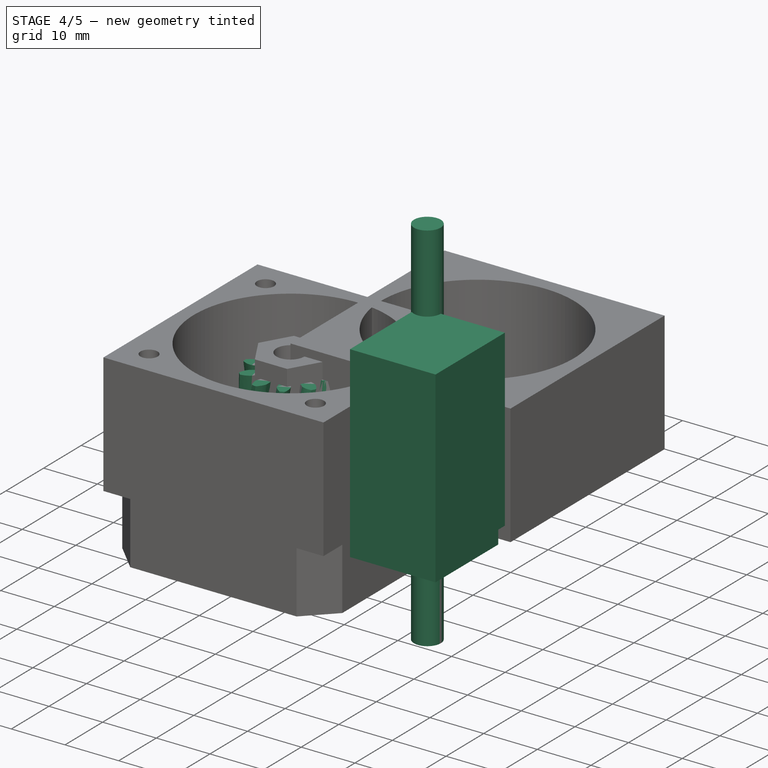
[diagram: stage 4 of 5 — iso view after this stage's code; geometry added in this stage tinted green]
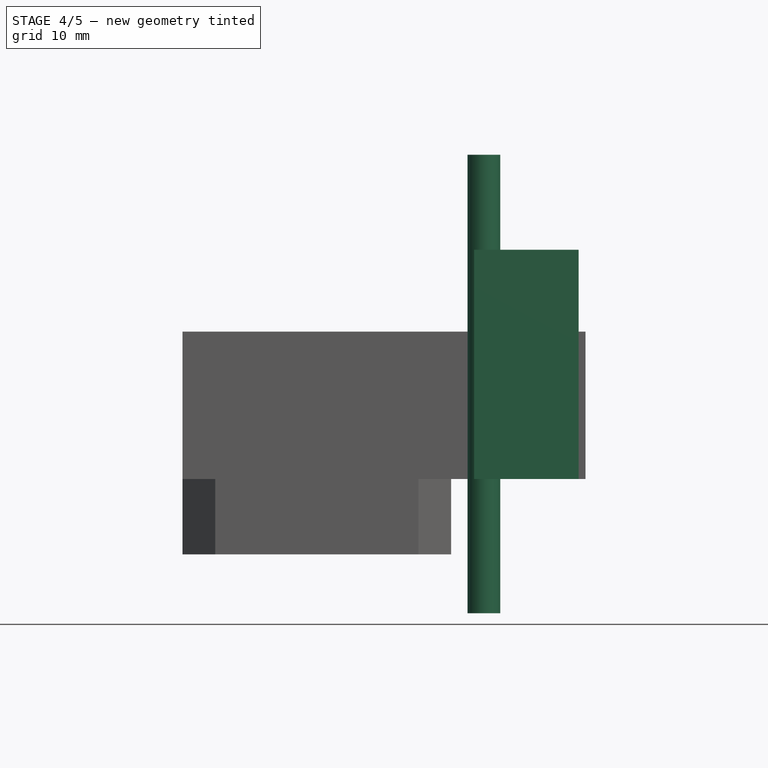
[diagram: stage 4 of 5 — front view after this stage's code; geometry added in this stage tinted green]
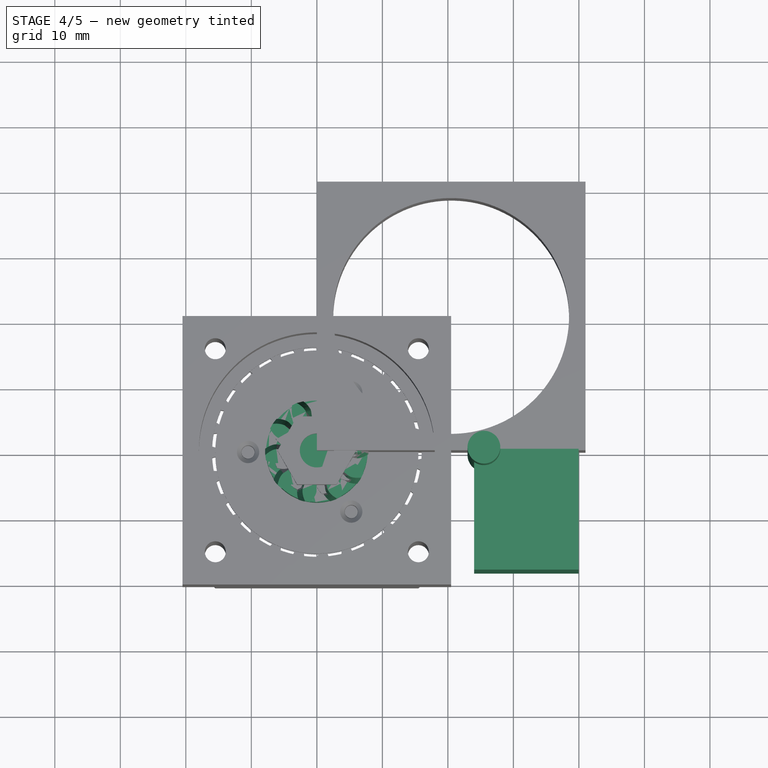
[diagram: stage 4 of 5 — top view after this stage's code; geometry added in this stage tinted green]
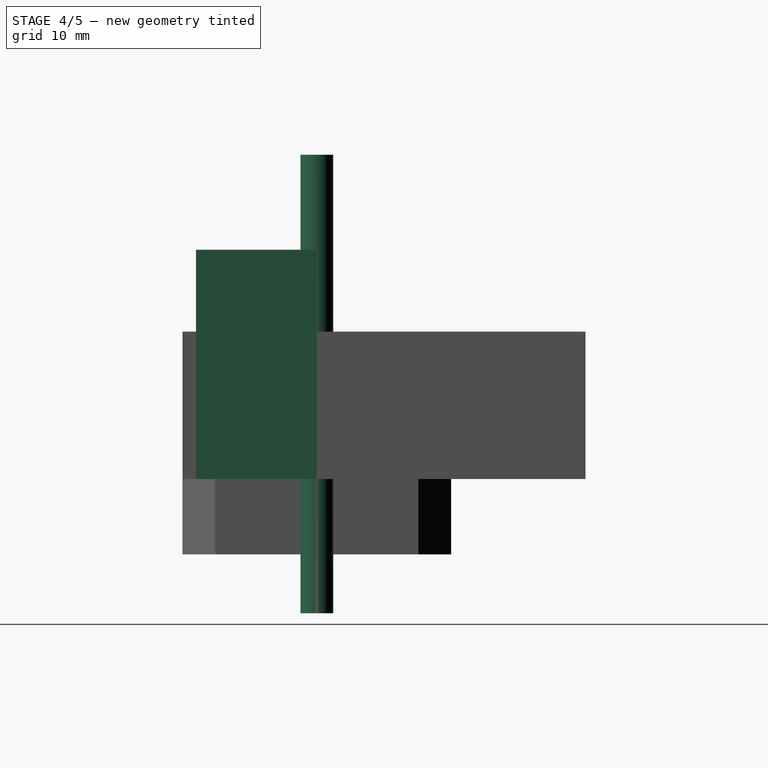
[diagram: stage 4 of 5 — right view after this stage's code; geometry added in this stage tinted green]
FEATURE [Part::Feature] Cut008_solid003  label="Planet004"
  Placement = pos=(0,0,0) rot=(0,0,1;4.18879rad)
  shape: bbox 12.9 x 13.1 x 5 mm, 57 faces (baked)
FEATURE [Part::Cylinder] Cylinder014005015  label="Válec031"
  Angle = 360
  AttacherType = Attacher::AttachEngine3D
  Height = 10
  Placement = pos=(0,0,-3) rot=(0,0,1;0rad)
  Radius = 7
FEATURE [Part::Cylinder] Cylinder014005016  label="unasec spodek003"
  Angle = 360
  AttacherType = Attacher::AttachEngine3D
  Height = 1.5
  Placement = pos=(0,0,-1.5) rot=(0,0,1;0rad)
  Radius = 15.5
FEATURE [Part::Cylinder] Cylinder014005017  label="unasec stred001"
  Angle = 360
  AttacherType = Attacher::AttachEngine3D
  Height = 7
  Placement = pos=(0,0,-1.5) rot=(0,0,1;0rad)
  Radius = 13.5
FEATURE [Part::Cylinder] Cylinder014005018  label="Válec032"
  Angle = 360
  AttacherType = Attacher::AttachEngine3D
  Height = 10
  Placement = pos=(10.5,0,0) rot=(0,0,1;0rad)
  Radius = 8
FEATURE [Part::MultiFuse] Fusion016
  Shapes = -> [Cylinder014005021,Cylinder014005022,Cylinder014005023]
FEATURE [Part::MultiFuse] Fusion017
  Shapes = -> [Cylinder014005015,Cylinder014005018,Cylinder014005024,Cylinder014005026]
FEATURE [Part::MultiFuse] Fusion018
  Shapes = -> [Cylinder014005017,Cylinder014005016]
FEATURE [Part::Cut] Cut016  label="unasec spodek002"
  Base = -> Fusion018
  Tool = -> Fusion017
FEATURE [Part::MultiFuse] Fusion019  label="srouby005"
  Shapes = -> [Screw_solid013,Screw_solid014,Screw_solid011]
FEATURE [Part::Cut] Cut018  label="Uasec spodek001"
  Base = -> Cut016
  Tool = -> Fusion019
FEATURE [Part::MultiFuse] Fusion021
  Shapes = -> [Cylinder014005028,Cylinder014005027,Cylinder014005025]
FEATURE [Part::MultiFuse] Fusion020  label="Unasec spdek final001"
  Shapes = -> [Cut018,Fusion021]
FEATURE [Part::MultiFuse] Fusion022  label="Ring zaklad Fin001"
  Shapes = -> [Cut015,Cut014,Cut017]
FEATURE [Part::Cylinder] Cylinder014005036  label="Válec049"
  Angle = 360
  AttacherType = Attacher::AttachEngine3D
  Height = 4
  Placement = pos=(0,0,7) rot=(0,0,1;0rad)
  Radius = 6.5
FEATURE [Part::Cylinder] Cylinder014005037  label="Válec050"
  Angle = 360
  AttacherType = Attacher::AttachEngine3D
  Height = 18
  Radius = 2.6
FEATURE [Part::Feature] Cut007_solid002  label="Sun003"
  Placement = pos=(0,0,10.5) rot=(0,0,1;0rad)
  shape: bbox 12.9 x 13.1 x 5 mm, 57 faces (baked)
FEATURE [Part::Feature] Screw_solid015  label="M2x4-Screw (Solid)015"
  Placement = pos=(0,0,0) rot=(0,0,-1;1.0472rad)
  shape: bbox 3.6 x 3.6 x 4 mm, 12 faces (baked)
FEATURE [Part::Feature] Screw_solid016  label="M2x4-Screw (Solid)016"
  Placement = pos=(0,0,0) rot=(0,0,1;3.14159rad)
  shape: bbox 3.6 x 3.6 x 4 mm, 12 faces (baked)
FEATURE [Part::Feature] Cylinder014005038  label="Válec051"
  Placement = pos=(0,0,0) rot=(0,0,1;4.18879rad)
  shape: bbox 5 x 5 x 7 mm, 3 faces (baked)
FEATURE [Part::Feature] Cylinder014005039  label="Válec052"
  shape: bbox 5 x 5 x 7 mm, 3 faces (baked)
FEATURE [Part::Feature] Cylinder014005040  label="Válec053"
  Placement = pos=(0,0,0) rot=(0,0,1;2.0944rad)
  shape: bbox 5 x 5 x 7 mm, 3 faces (baked)
FEATURE [Part::Feature] Screw_solid017  label="M2x4-Screw (Solid)017"
  Placement = pos=(0,0,0) rot=(0,0,1;1.0472rad)
  shape: bbox 3.6 x 3.6 x 4 mm, 12 faces (baked)
FEATURE [Part::Cylinder] Cylinder014005041  label="Unasec vrch003"
  Angle = 360
  AttacherType = Attacher::AttachEngine3D
  Height = 1.5
  Placement = pos=(0,0,5.5) rot=(0,0,1;0rad)
  Radius = 15.5
FEATURE [Part::Cylinder] Cylinder014005042  label="Válec054"
  Angle = 360
  AttacherType = Attacher::AttachEngine3D
  Height = 7
  Radius = 2.6
FEATURE [Part::MultiFuse] Fusion026
  Shapes = -> [Cylinder014005038,Cylinder014005039,Cylinder014005040]
FEATURE [Part::MultiFuse] Fusion025
  Placement = pos=(0,0,1) rot=(0,0,1;0rad)
  Shapes = -> [Fusion026,Cylinder014005042]
FEATURE [Part::MultiFuse] Fusion027  label="srouby006"
  Placement = pos=(0,0,0.5) rot=(0,0,1;0rad)
  Shapes = -> [Screw_solid017,Screw_solid015,Screw_solid016]
FEATURE [Part::Cut] Cut021  label="unasec vrch003"
  Base = -> Cylinder014005041
  Tool = -> Fusion027
FEATURE [Part::Cut] Cut022  label="Unasec Vrch zaklad003"
  Base = -> Cut021
  Tool = -> Fusion025
FEATURE [Part::MultiFuse] Fusion024  label="unasec vrhch 003"
  Shapes = -> [Cut022,Cut007_solid002,Cylinder014005036]
FEATURE [Part::Cut] Cut023  label="Unasec + Sun001"
  Base = -> Fusion024
  Tool = -> Cylinder014005037
FEATURE [Part::MultiFuse] Fusion029  label="teloII"
  Shapes = -> [Fusion022,Extrude001]
FEATURE [Part::FeaturePython] InvoluteGear011  label="SUN 10 "  # WARN: FeaturePython — macro-defined, semantics opaque (R4)
  Placement = pos=(0,0,13) rot=(0,0,1;0rad)
  backlash = 0
  beta = 10
  clearance = 0.25
  double_helix = false
  head = 0
  height = 10
  module = 1.3
  numpoints = 6
  pressure_angle = 20
  reversed_backlash = false
  shift = 0
  simple = false
  teeth = 10
  undercut = false
FEATURE [Part::Cylinder] Cylinder014005086  label="Válec092"
  Angle = 360
  AttacherType = Attacher::AttachEngine3D
  Height = 6
  Placement = pos=(0,0,7) rot=(0,0,1;0rad)
  Radius = 7.75
FEATURE [App::Part] Part003  label="Part004a"
  Group = -> [Cut032,Cut039,Cylinder014005077,Cylinder014005082,Cylinder014005074,Cylinder014005081,Cylinder014005065,Cylinder014005066,Cylinder014005068,Screw_solid025,Cylinder014005064,Screw_solid024,Cylinder014005070,Screw_solid029,Fusion048,Fusion051,Fusion041,Fusion049,Fusion042,Cut008_solid011,Cut008_solid010,Cut008_solid009,Screw_solid028,Cylinder014005071,Cylinder014005069,Screw_solid026,Screw_solid027,+44 more]
  License = CC BY 3.0
  LicenseURL = http://creativecommons.org/licenses/by/3.0/
  Origin = -> Origin003
  Placement = pos=(0,0,31.5) rot=(0,0,1;0rad)
FEATURE [Part::Cylinder] Cylinder014005087  label="Válec093"
  Angle = 360
  AttacherType = Attacher::AttachEngine3D
  Height = 70
  Placement = pos=(25.5,0,-20.5) rot=(0,0,1;0rad)
  Radius = 2.5
FEATURE [Part::Feature] Cylinder014005088  label="Válec094"
  Placement = pos=(0,0,0) rot=(0,0,1;4.18879rad)
  shape: bbox 5 x 5 x 7 mm, 3 faces (baked)
FEATURE [Part::Feature] Cylinder014005089  label="Válec095"
  Placement = pos=(0,0,0) rot=(0,0,1;2.0944rad)
  shape: bbox 5 x 5 x 7 mm, 3 faces (baked)
FEATURE [Part::Feature] Cylinder014005090  label="Válec096"
  shape: bbox 5 x 5 x 7 mm, 3 faces (baked)
FEATURE [Part::MultiFuse] Fusion055
  Shapes = -> [Cylinder014005088,Cylinder014005090,Cylinder014005089]
FEATURE [Part::Feature] Screw_solid030  label="M2x4-Screw (Solid)030"
  Placement = pos=(0,0,0) rot=(0,0,1;1.0472rad)
  shape: bbox 3.6 x 3.6 x 4 mm, 12 faces (baked)
FEATURE [Part::Feature] Cylinder014005091  label="Válec097"
  Placement = pos=(0,0,0) rot=(0,0,1;4.18879rad)
  shape: bbox 16 x 16 x 10 mm, 3 faces (baked)
FEATURE [Part::Feature] Screw_solid031  label="M2x4-Screw (Solid)031"
  Placement = pos=(0,0,0) rot=(0,0,1;3.14159rad)
  shape: bbox 3.6 x 3.6 x 4 mm, 12 faces (baked)
FEATURE [Part::Feature] Cylinder014005092  label="Válec098"
  Placement = pos=(0,0,0) rot=(0,0,1;2.0944rad)
  shape: bbox 16 x 16 x 10 mm, 3 faces (baked)
FEATURE [Part::Feature] Screw_solid032  label="M2x4-Screw (Solid)032"
  Placement = pos=(0,0,0) rot=(0,0,-1;1.0472rad)
  shape: bbox 3.6 x 3.6 x 4 mm, 12 faces (baked)
FEATURE [Part::MultiFuse] Fusion054  label="srouby011"
  Shapes = -> [Screw_solid030,Screw_solid032,Screw_solid031]
FEATURE [Part::Cylinder] Cylinder014005093  label="unasec spodek009"
  Angle = 360
  AttacherType = Attacher::AttachEngine3D
  Height = 1.5
  Placement = pos=(0,0,-1.5) rot=(0,0,1;0rad)
  Radius = 15.5
FEATURE [Part::Cylinder] Cylinder014005094  label="unasec stred004"
  Angle = 360
  AttacherType = Attacher::AttachEngine3D
  Height = 7
  Placement = pos=(0,0,-1.5) rot=(0,0,1;0rad)
  Radius = 13.5
FEATURE [Part::MultiFuse] Fusion056
  Shapes = -> [Cylinder014005094,Cylinder014005093]
FEATURE [Part::Cylinder] Cylinder014005095  label="Válec099"
  Angle = 360
  AttacherType = Attacher::AttachEngine3D
  Height = 10
  Placement = pos=(0,0,-3) rot=(0,0,1;0rad)
  Radius = 7
FEATURE [Part::Cylinder] Cylinder014005096  label="Válec100"
  Angle = 360
  AttacherType = Attacher::AttachEngine3D
  Height = 10
  Placement = pos=(10.5,0,0) rot=(0,0,1;0rad)
  Radius = 8
FEATURE [Part::MultiFuse] Fusion053
  Shapes = -> [Cylinder014005095,Cylinder014005096,Cylinder014005091,Cylinder014005092]
FEATURE [Part::Cut] Cut041  label="unasec spodek008"
  Base = -> Fusion056
  Tool = -> Fusion053
FEATURE [Part::Cut] Cut042  label="Uasec spodek004"
  Base = -> Cut041
  Tool = -> Fusion054
FEATURE [Part::MultiFuse] Fusion057  label="Unasec spdek zaklad"
  Shapes = -> [Cut042,Fusion055]
FEATURE [Part::Box] Box004  label="Krychle003"
  AttacherType = Attacher::AttachEngine3D
  Height = 18.45
  Length = 15.95
  Width = 35
FEATURE [Part::Box] Box005  label="Krychle004"
  AttacherType = Attacher::AttachEngine3D
  Height = 1.75
  Length = 1.75
  Width = 2.5
FEATURE [Part::Cut] Cut059
  Base = -> Box004
  Tool = -> Box005
FEATURE [Part::Box] Box006  label="Krychle005"
  AttacherType = Attacher::AttachEngine3D
  Height = 1.75
  Length = 1.75
  Placement = pos=(14.2,0,0) rot=(0,0,1;0rad)
  Width = 2.5
FEATURE [Part::Cut] Cut060  label="RJ45"
  Base = -> Cut059
  Placement = pos=(24,0,0) rot=(1,0,0;1.5708rad)
  Tool = -> Box006
FEATURE [App::Part] Part006  label="RJ046"
  Group = -> [Cut059,Box006,Box004,Box005,Cut060]
  License = CC BY 3.0
  LicenseURL = http://creativecommons.org/licenses/by/3.0/
  Origin = -> Origin006
  Placement = pos=(-23,36,0) rot=(0,0,1;0rad)
FEATURE [Part::Feature] Cut007_solid007  label="Sun008"
  shape: bbox 12.9 x 13.1 x 5 mm, 57 faces (baked)
FEATURE [Part::Cylinder] Cylinder014005139  label="Válec137"
  Angle = 360
  AttacherType = Attacher::AttachEngine3D
  Height = 7.5
  Placement = pos=(0,0,-7) rot=(0,0,1;0rad)
  Radius = 6.5
FEATURE [Part::Cylinder] Cylinder014005140  label="Válec138"
  Angle = 360
  AttacherType = Attacher::AttachEngine3D
  Height = 7
  Placement = pos=(0,0,-7) rot=(0,0,1;0rad)
  Radius = 12
FEATURE [Part::MultiFuse] Fusion080
  Shapes = -> [Cut007_solid007,Cylinder014005139,Cylinder014005140]
FEATURE [Part::Cylinder] Cylinder014005141  label="Válec139"
  Angle = 360
  AttacherType = Attacher::AttachEngine3D
  Height = 15
  Placement = pos=(0,0,-8) rot=(0,0,1;0rad)
  Radius = 2.65
FEATURE [Part::Box] Box  label="Krychle"
  AttacherType = Attacher::AttachEngine3D
  Height = 7
  Length = 3
  Placement = pos=(6,-2.9,-7.5) rot=(0,0,1;0rad)
  Width = 5.8
FEATURE [Part::Cylinder] Cylinder014005142  label="Válec140"
  Angle = 360
  AttacherType = Attacher::AttachEngine3D
  Height = 12
  Placement = pos=(1,0,-4) rot=(0,1,0;1.5708rad)
  Radius = 1.6
FEATURE [Part::MultiFuse] Fusion081
  Shapes = -> [Box,Cylinder014005142]
FEATURE [Part::Cylinder] Cylinder014005143  label="Válec141"
  Angle = 360
  AttacherType = Attacher::AttachEngine3D
  Height = 12
  Placement = pos=(1,0,-4) rot=(0,1,0;1.5708rad)
  Radius = 1.6
FEATURE [Part::Box] Box007  label="Krychle006"
  AttacherType = Attacher::AttachEngine3D
  Height = 7
  Length = 3
  Placement = pos=(6,-2.9,-7.5) rot=(0,0,1;0rad)
  Width = 5.8
FEATURE [Part::MultiFuse] Fusion082
  Placement = pos=(0,0,0) rot=(0,0,1;2.0944rad)
  Shapes = -> [Box007,Cylinder014005143]
FEATURE [Part::Cylinder] Cylinder014005144  label="Válec142"
  Angle = 360
  AttacherType = Attacher::AttachEngine3D
  Height = 12
  Placement = pos=(1,0,-4) rot=(0,1,0;1.5708rad)
  Radius = 1.6
FEATURE [Part::Box] Box008  label="Krychle007"
  AttacherType = Attacher::AttachEngine3D
  Height = 7
  Length = 3
  Placement = pos=(6,-2.9,-7.5) rot=(0,0,1;0rad)
  Width = 5.8
FEATURE [Part::MultiFuse] Fusion083
  Placement = pos=(0,0,0) rot=(0,0,1;4.18879rad)
  Shapes = -> [Box008,Cylinder014005144]
FEATURE [Part::MultiFuse] Fusion084
  Shapes = -> [Cylinder014005141,Fusion081,Fusion082,Fusion083]
FEATURE [Part::Cut] Cut061  label="Sun I"
  Base = -> Fusion080
  Tool = -> Fusion084
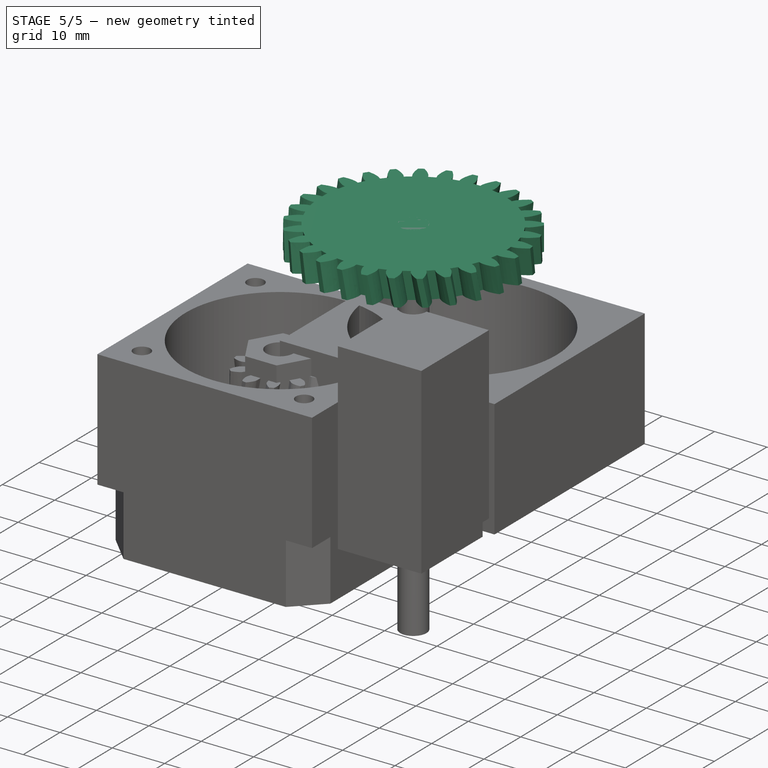
[diagram: stage 5 of 5 — iso view after this stage's code; geometry added in this stage tinted green]
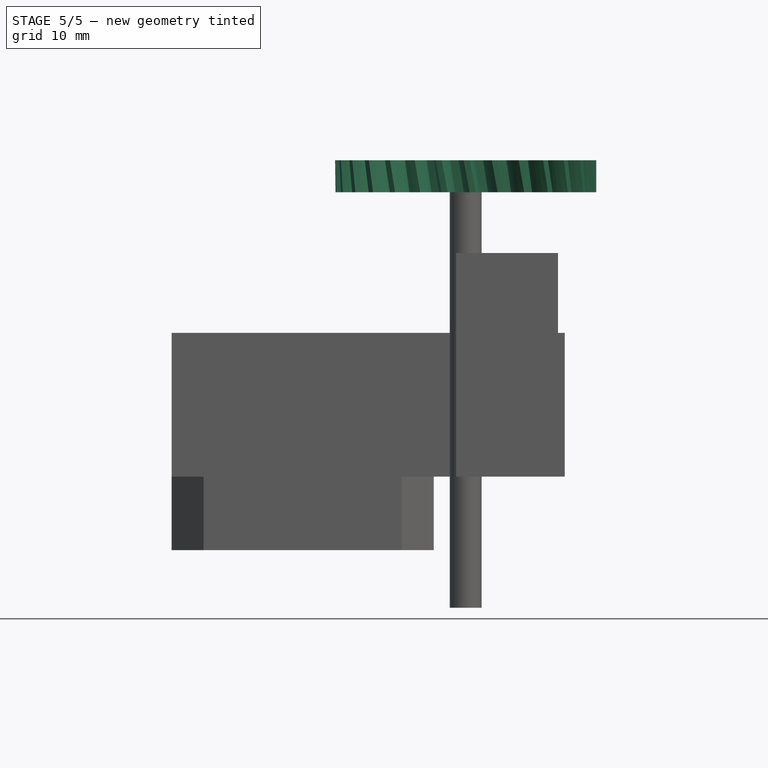
[diagram: stage 5 of 5 — front view after this stage's code; geometry added in this stage tinted green]
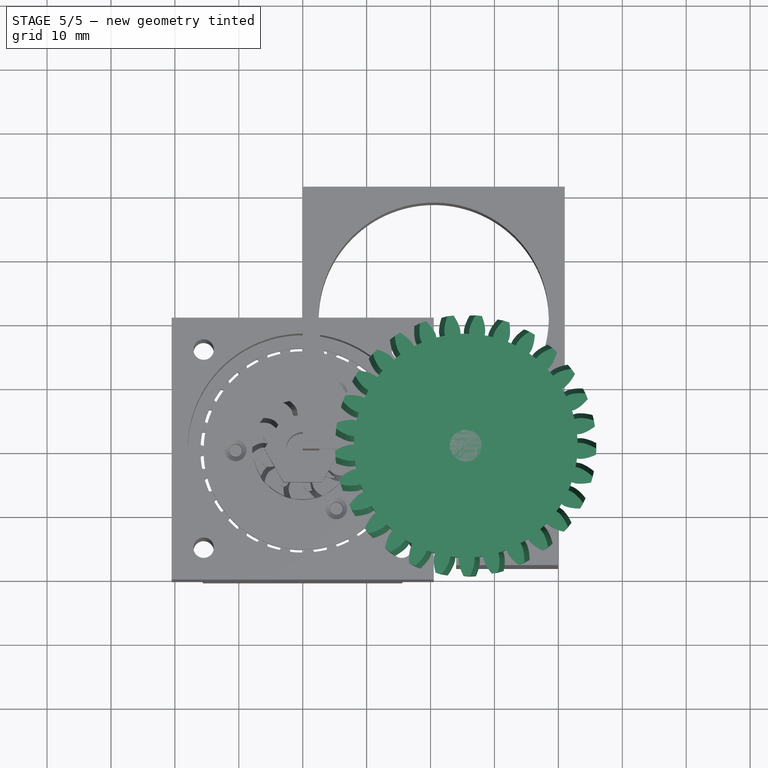
[diagram: stage 5 of 5 — top view after this stage's code; geometry added in this stage tinted green]
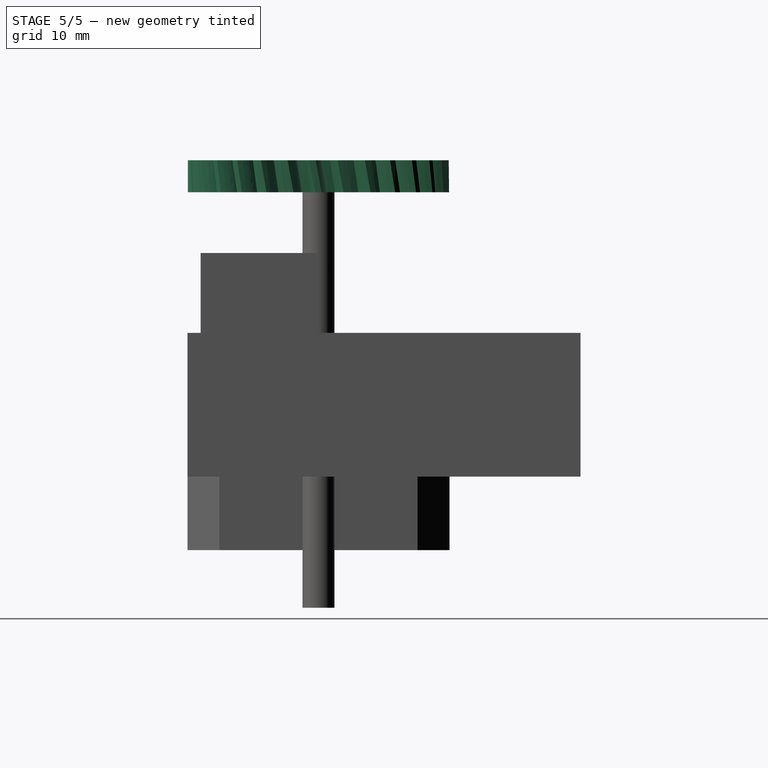
[diagram: stage 5 of 5 — right view after this stage's code; geometry added in this stage tinted green]
FEATURE [Part::Cylinder] Cylinder012  label="Unasec vrch"
  Angle = 360
  AttacherType = Attacher::AttachEngine3D
  Height = 1.5
  Placement = pos=(0,0,5.5) rot=(0,0,1;0rad)
  Radius = 15.5
FEATURE [Part::FeaturePython] Screw  label="M2x4-Screw"  # Fasteners workbench fastener (typed FeaturePython)
  Placement = pos=(10.5,0,7) rot=(0,0,1;0rad)
  diameter = 2
  invert = false
  length = 1
  matchOuter = false
  offset = 0
  thread = false
  type = 11
FEATURE [Part::Feature] Screw_solid  label="M2x4-Screw (Solid)"
  Placement = pos=(0,0,0) rot=(0,0,1;1.0472rad)
  shape: bbox 3.6 x 3.6 x 4 mm, 12 faces (baked)
FEATURE [Part::Feature] Screw_solid001  label="M2x4-Screw (Solid)001"
  Placement = pos=(0,0,0) rot=(0,0,-1;1.0472rad)
  shape: bbox 3.6 x 3.6 x 4 mm, 12 faces (baked)
FEATURE [Part::Feature] Screw_solid002  label="M2x4-Screw (Solid)002"
  Placement = pos=(0,0,0) rot=(0,0,1;3.14159rad)
  shape: bbox 3.6 x 3.6 x 4 mm, 12 faces (baked)
FEATURE [Part::MultiFuse] Fusion003  label="srouby1"
  Placement = pos=(0,0,0.5) rot=(0,0,1;0rad)
  Shapes = -> [Screw_solid,Screw_solid001,Screw_solid002]
FEATURE [Part::Cut] Cut005  label="unasec vrch"
  Base = -> Cylinder012
  Tool = -> Fusion003
FEATURE [Part::FeaturePython] InvoluteGear  label="Sun"  # WARN: FeaturePython — macro-defined, semantics opaque (R4)
  Placement = pos=(0,0,0.25) rot=(0,0,1;0rad)
  backlash = 0
  beta = 0
  clearance = 0.25
  double_helix = false
  head = 0
  height = 5
  module = 1.2
  numpoints = 6
  pressure_angle = 20
  reversed_backlash = false
  shift = 0
  simple = false
  teeth = 9
  undercut = false
FEATURE [Part::FeaturePython] InvoluteGear002  label="planet"  # WARN: FeaturePython — macro-defined, semantics opaque (R4)
  Placement = pos=(10.5,0,0.25) rot=(0,0,1;0rad)
  backlash = 0
  beta = 0
  clearance = 0.25
  double_helix = false
  head = 0
  height = 5
  module = 1.2
  numpoints = 6
  pressure_angle = 20
  reversed_backlash = false
  shift = 0
  simple = false
  teeth = 9
  undercut = false
FEATURE [Part::Cylinder] Cylinder014003  label="Válec015"
  Angle = 360
  AttacherType = Attacher::AttachEngine3D
  Height = 10
  Radius = 2.5
FEATURE [Part::Cut] Cut007  label="Sun0 zaklad"
  Base = -> InvoluteGear
  Tool = -> Cylinder014003
FEATURE [Part::Cylinder] Cylinder014004  label="Válec016"
  Angle = 360
  AttacherType = Attacher::AttachEngine3D
  Height = 10
  Placement = pos=(10.5,0,0) rot=(0,0,1;0rad)
  Radius = 2.8
FEATURE [Part::Cut] Cut008  label="Planet0 zaklad final"
  Base = -> InvoluteGear002
  Tool = -> Cylinder014004
FEATURE [Part::Feature] Cut008_solid  label="Planet001"
  shape: bbox 12.9 x 13.1 x 5 mm, 57 faces (baked)
FEATURE [Part::Feature] Cut008_solid001  label="Planet002"
  Placement = pos=(0,0,0) rot=(0,0,1;2.0944rad)
  shape: bbox 12.9 x 13.1 x 5 mm, 57 faces (baked)
FEATURE [Part::Feature] Cut008_solid002  label="Planet003"
  Placement = pos=(0,0,0) rot=(0,0,1;4.18879rad)
  shape: bbox 12.9 x 13.1 x 5 mm, 57 faces (baked)
FEATURE [Part::Feature] Cut007_solid  label="Sun1"
  shape: bbox 12.9 x 13.1 x 5 mm, 57 faces (baked)
FEATURE [Part::Cylinder] Cylinder014005  label="Válec017"
  Angle = 360
  AttacherType = Attacher::AttachEngine3D
  Height = 7
  Radius = 2.6
FEATURE [Part::Feature] Cylinder014005001  label="Válec018"
  shape: bbox 5 x 5 x 7 mm, 3 faces (baked)
FEATURE [Part::Feature] Cylinder014005002  label="Válec019"
  Placement = pos=(0,0,0) rot=(0,0,1;2.0944rad)
  shape: bbox 5 x 5 x 7 mm, 3 faces (baked)
FEATURE [Part::Feature] Cylinder014005003  label="Válec020"
  Placement = pos=(0,0,0) rot=(0,0,1;4.18879rad)
  shape: bbox 5 x 5 x 7 mm, 3 faces (baked)
FEATURE [Part::MultiFuse] Fusion005
  Shapes = -> [Cylinder014005003,Cylinder014005001,Cylinder014005002]
FEATURE [Part::MultiFuse] Fusion007
  Placement = pos=(0,0,1) rot=(0,0,1;0rad)
  Shapes = -> [Fusion005,Cylinder014005]
FEATURE [Part::Cut] Cut009  label="Unasec Vrch zaklad"
  Base = -> Cut005
  Tool = -> Fusion007
FEATURE [Part::FeaturePython] Screw001  label="M2x6-Screw"  # Fasteners workbench fastener (typed FeaturePython)
  Placement = pos=(0,-8,-4.5) rot=(1,0,0;1.5708rad)
  diameter = 2
  invert = false
  length = 3
  matchOuter = false
  offset = 0
  thread = false
  type = 11
FEATURE [Part::Cylinder] Cylinder014005019  label="Unasec vrch002"
  Angle = 360
  AttacherType = Attacher::AttachEngine3D
  Height = 1.5
  Placement = pos=(0,0,5.5) rot=(0,0,1;0rad)
  Radius = 15.5
FEATURE [Part::Cylinder] Cylinder014005020  label="Válec033"
  Angle = 360
  AttacherType = Attacher::AttachEngine3D
  Height = 7
  Radius = 2.6
FEATURE [Part::Feature] Cut008_solid005  label="Planet006"
  Placement = pos=(0,0,0) rot=(0,0,1;2.0944rad)
  shape: bbox 12.9 x 13.1 x 5 mm, 57 faces (baked)
FEATURE [Part::MultiFuse] Fusion015  label="srouby004"
  Placement = pos=(0,0,0.5) rot=(0,0,1;0rad)
  Shapes = -> [Screw_solid010,Screw_solid012,Screw_solid009]
FEATURE [Part::Cut] Cut013  label="unasec vrch002"
  Base = -> Cylinder014005019
  Tool = -> Fusion015
FEATURE [Part::MultiFuse] Fusion014
  Placement = pos=(0,0,1) rot=(0,0,1;0rad)
  Shapes = -> [Fusion016,Cylinder014005020]
FEATURE [Part::Cut] Cut019  label="Unasec Vrch zaklad002"
  Base = -> Cut013
  Tool = -> Fusion014
FEATURE [App::Part] Part002  label="Part009"
  Group = -> [Cut030,Cut031,Cylinder014005052,Cylinder014005055,Cylinder014005053,Cylinder014005054,Cylinder014005048,Cylinder014005049,Cylinder014005050,Screw_solid022,Cylinder014005047,Screw_solid023,Cylinder014005045,Screw_solid021,Fusion031,Fusion030,Fusion039,Fusion033,Fusion040,Cut008_solid007,Cut008_solid006,Cut008_solid008,Screw_solid018,Cylinder014005043,Cylinder014005044,Screw_solid019,Screw_solid020,+26 more]
  License = CC BY 3.0
  LicenseURL = http://creativecommons.org/licenses/by/3.0/
  Origin = -> Origin002
  Placement = pos=(0,0,21) rot=(0,0,1;0rad)
FEATURE [Part::FeaturePython] InvoluteGear008  # WARN: FeaturePython — macro-defined, semantics opaque (R4)
  backlash = 0
  beta = 0
  clearance = 0.25
  double_helix = false
  head = 0
  height = 5.5
  module = 1.2
  numpoints = 6
  pressure_angle = 20
  reversed_backlash = false
  shift = 0
  simple = false
  teeth = 27
  undercut = false
FEATURE [Part::Feature] Cylinder014005064  label="Válec073"
  shape: bbox 5 x 5 x 7 mm, 3 faces (baked)
FEATURE [Part::Feature] Cylinder014005065  label="Válec074"
  Placement = pos=(0,0,0) rot=(0,0,1;4.18879rad)
  shape: bbox 16 x 16 x 10 mm, 3 faces (baked)
FEATURE [Part::Feature] Cylinder014005066  label="Válec075"
  Placement = pos=(0,0,0) rot=(0,0,1;2.0944rad)
  shape: bbox 5 x 5 x 7 mm, 3 faces (baked)
FEATURE [Part::Feature] Cut008_solid009  label="Planet010"
  Placement = pos=(0,0,0) rot=(0,0,1;4.18879rad)
  shape: bbox 12.9 x 13.1 x 5 mm, 57 faces (baked)
FEATURE [Part::Feature] Cut005_solid001_cs004
  Placement = pos=(0,0,-11.25) rot=(0,0,1;0rad)
  shape: bbox 41 x 41 x 3e-07 mm, 0 faces, 0 solids (baked)
FEATURE [Part::Feature] Cylinder014005067  label="Válec076"
  Placement = pos=(0,0,0) rot=(0,0,1;4.18879rad)
  shape: bbox 5 x 5 x 7 mm, 3 faces (baked)
FEATURE [Part::Feature] Screw_solid024  label="M2x4-Screw (Solid)024"
  Placement = pos=(0,0,0) rot=(0,0,1;1.0472rad)
  shape: bbox 3.6 x 3.6 x 4 mm, 12 faces (baked)
FEATURE [Part::Feature] Cut007_solid004  label="Sun005"
  Placement = pos=(0,0,10.5) rot=(0,0,1;0rad)
  shape: bbox 12.9 x 13.1 x 5 mm, 57 faces (baked)
FEATURE [Part::Feature] Cylinder014005068  label="Válec077"
  Placement = pos=(0,0,0) rot=(0,0,1;2.0944rad)
  shape: bbox 16 x 16 x 10 mm, 3 faces (baked)
FEATURE [Part::Feature] Screw_solid025  label="M2x4-Screw (Solid)025"
  Placement = pos=(0,0,0) rot=(0,0,1;3.14159rad)
  shape: bbox 3.6 x 3.6 x 4 mm, 12 faces (baked)
FEATURE [Part::Feature] Cylinder014005069  label="Válec078"
  Placement = pos=(0,0,0) rot=(0,0,1;2.0944rad)
  shape: bbox 5 x 5 x 7 mm, 3 faces (baked)
FEATURE [Part::Feature] Screw_solid026  label="M2x4-Screw (Solid)026"
  Placement = pos=(0,0,0) rot=(0,0,-1;1.0472rad)
  shape: bbox 3.6 x 3.6 x 4 mm, 12 faces (baked)
FEATURE [Part::Feature] Screw_solid027  label="M2x4-Screw (Solid)027"
  Placement = pos=(0,0,0) rot=(0,0,1;3.14159rad)
  shape: bbox 3.6 x 3.6 x 4 mm, 12 faces (baked)
FEATURE [Part::Feature] Cut008_solid010  label="Planet011"
  Placement = pos=(0,0,0) rot=(0,0,1;2.0944rad)
  shape: bbox 12.9 x 13.1 x 5 mm, 57 faces (baked)
FEATURE [Part::Feature] Cylinder014005070  label="Válec079"
  Placement = pos=(0,0,0) rot=(0,0,1;4.18879rad)
  shape: bbox 5 x 5 x 7 mm, 3 faces (baked)
FEATURE [Part::MultiFuse] Fusion049
  Shapes = -> [Cylinder014005070,Cylinder014005064,Cylinder014005066]
FEATURE [Part::Feature] Screw_solid028  label="M2x4-Screw (Solid)028"
  Placement = pos=(0,0,0) rot=(0,0,1;1.0472rad)
  shape: bbox 3.6 x 3.6 x 4 mm, 12 faces (baked)
FEATURE [Part::MultiFuse] Fusion045  label="srouby010"
  Placement = pos=(0,0,0.5) rot=(0,0,1;0rad)
  Shapes = -> [Screw_solid028,Screw_solid026,Screw_solid027]
FEATURE [Part::Feature] Screw_solid029  label="M2x4-Screw (Solid)029"
  Placement = pos=(0,0,0) rot=(0,0,-1;1.0472rad)
  shape: bbox 3.6 x 3.6 x 4 mm, 12 faces (baked)
FEATURE [Part::MultiFuse] Fusion041  label="srouby009"
  Shapes = -> [Screw_solid024,Screw_solid029,Screw_solid025]
FEATURE [Part::Feature] Cylinder014005071  label="Válec080"
  shape: bbox 5 x 5 x 7 mm, 3 faces (baked)
FEATURE [Part::MultiFuse] Fusion047
  Shapes = -> [Cylinder014005067,Cylinder014005071,Cylinder014005069]
FEATURE [Part::Feature] Cut008_solid011  label="Planet012"
  shape: bbox 12.9 x 13.1 x 5 mm, 57 faces (baked)
FEATURE [Part::Extrusion] Extrude003  label="box003"
  Base = -> Cut005_solid001_cs004
  Dir = (0,0,1)
  DirMode = 2
  FaceMakerClass = Part::FaceMakerBullseye
  LengthFwd = 10.5
  LengthRev = 0
  Placement = pos=(0,0,-3) rot=(0,0,1;0rad)
  Solid = true
  Symmetric = false
FEATURE [Part::Cylinder] Cylinder014005072  label="Válec081"
  Angle = 360
  AttacherType = Attacher::AttachEngine3D
  Height = 18
  Radius = 2.6
FEATURE [Part::Cylinder] Cylinder014005073  label="Unasec vrch005"
  Angle = 360
  AttacherType = Attacher::AttachEngine3D
  Height = 1.5
  Placement = pos=(0,0,5.5) rot=(0,0,1;0rad)
  Radius = 15.5
FEATURE [Part::Cut] Cut037  label="unasec vrch005"
  Base = -> Cylinder014005073
  Tool = -> Fusion045
FEATURE [Part::Cylinder] Cylinder014005074  label="unasec stred003"
  Angle = 360
  AttacherType = Attacher::AttachEngine3D
  Height = 7
  Placement = pos=(0,0,-1.5) rot=(0,0,1;0rad)
  Radius = 13.5
FEATURE [Part::Cylinder] Cylinder014005075  label="Válec082"
  Angle = 360
  AttacherType = Attacher::AttachEngine3D
  Height = 1.5
  Radius = 20
FEATURE [Part::Cylinder] Cylinder014005076  label="Válec083"
  Angle = 360
  AttacherType = Attacher::AttachEngine3D
  Height = 1.5
  Radius = 16
FEATURE [Part::Cut] Cut038  label="Ring009"
  Base = -> Cylinder014005075
  Placement = pos=(0,0,5.5) rot=(0,0,1;0rad)
  Tool = -> Cylinder014005076
FEATURE [Part::Cylinder] Cylinder014005077  label="Válec084"
  Angle = 360
  AttacherType = Attacher::AttachEngine3D
  Height = 10
  Placement = pos=(0,0,-3) rot=(0,0,1;0rad)
  Radius = 7
FEATURE [Part::Cylinder] Cylinder014005078  label="Válec085"
  Angle = 360
  AttacherType = Attacher::AttachEngine3D
  Height = 7
  Radius = 2.6
FEATURE [Part::MultiFuse] Fusion043
  Placement = pos=(0,0,1) rot=(0,0,1;0rad)
  Shapes = -> [Fusion047,Cylinder014005078]
FEATURE [Part::Cut] Cut036  label="Unasec Vrch zaklad005"
  Base = -> Cut037
  Tool = -> Fusion043
FEATURE [Part::Cylinder] Cylinder014005079  label="Válec086"
  Angle = 360
  AttacherType = Attacher::AttachEngine3D
  Height = 4
  Placement = pos=(0,0,7) rot=(0,0,1;0rad)
  Radius = 6.5
FEATURE [Part::MultiFuse] Fusion046  label="unasec vrhch 005"
  Shapes = -> [Cut036,Cut007_solid004,Cylinder014005079]
FEATURE [Part::Cut] Cut035  label="Unasec + Sun003"
  Base = -> Fusion046
  Tool = -> Cylinder014005072
FEATURE [Part::Cylinder] Cylinder014005080  label="Válec087"
  Angle = 360
  AttacherType = Attacher::AttachEngine3D
  Height = 1.5
  Radius = 16
FEATURE [Part::Cylinder] Cylinder014005081  label="Válec088"
  Angle = 360
  AttacherType = Attacher::AttachEngine3D
  Height = 10
  Placement = pos=(10.5,0,0) rot=(0,0,1;0rad)
  Radius = 8
FEATURE [Part::MultiFuse] Fusion048
  Shapes = -> [Cylinder014005077,Cylinder014005081,Cylinder014005065,Cylinder014005068]
FEATURE [Part::Cylinder] Cylinder014005082  label="unasec spodek007"
  Angle = 360
  AttacherType = Attacher::AttachEngine3D
  Height = 1.5
  Placement = pos=(0,0,-1.5) rot=(0,0,1;0rad)
  Radius = 15.5
FEATURE [Part::MultiFuse] Fusion051
  Shapes = -> [Cylinder014005074,Cylinder014005082]
FEATURE [Part::Cut] Cut032  label="unasec spodek006"
  Base = -> Fusion051
  Tool = -> Fusion048
FEATURE [Part::Cut] Cut039  label="Uasec spodek003"
  Base = -> Cut032
  Tool = -> Fusion041
FEATURE [Part::MultiFuse] Fusion042  label="Unasec spdek final003"
  Shapes = -> [Cut039,Fusion049]
FEATURE [Part::Cylinder] Cylinder014005083  label="Válec089"
  Angle = 360
  AttacherType = Attacher::AttachEngine3D
  Height = 5.5
  Radius = 20
FEATURE [Part::Cut] Cut033  label="ring 004"
  Base = -> Cylinder014005083
  Tool = -> InvoluteGear008
FEATURE [Part::Cylinder] Cylinder014005084  label="Válec090"
  Angle = 360
  AttacherType = Attacher::AttachEngine3D
  Height = 1.5
  Radius = 20
FEATURE [Part::Cut] Cut034  label="Ring008"
  Base = -> Cylinder014005084
  Placement = pos=(0,0,-1.5) rot=(0,0,1;0rad)
  Tool = -> Cylinder014005080
FEATURE [Part::MultiFuse] Fusion044  label="Ring zaklad Fin003"
  Shapes = -> [Cut033,Cut038,Cut034]
FEATURE [Part::MultiFuse] Fusion050  label="teloII002"
  Shapes = -> [Fusion044,Extrude003]
FEATURE [Part::FeaturePython] InvoluteGear010  # WARN: FeaturePython — macro-defined, semantics opaque (R4)
  Placement = pos=(25.5,0,44.5) rot=(0,0,1;0rad)
  backlash = 0
  beta = -10
  clearance = 0.25
  double_helix = false
  head = 0
  height = 10
  module = 1.3
  numpoints = 6
  pressure_angle = 20
  reversed_backlash = false
  shift = 0
  simple = false
  teeth = 29
  undercut = false
FEATURE [Part::Cylinder] Cylinder014005085  label="Válec091"
  Angle = 360
  AttacherType = Attacher::AttachEngine3D
  Height = 14
  Placement = pos=(0,0,5) rot=(0,0,1;0rad)
  Radius = 2.6
FEATURE [Part::MultiFuse] Fusion052
  Shapes = -> [Cylinder014005086,InvoluteGear011,Cut019]
FEATURE [Part::Cut] Cut040  label="Unasec III"
  Base = -> Fusion052
  Tool = -> Cylinder014005085
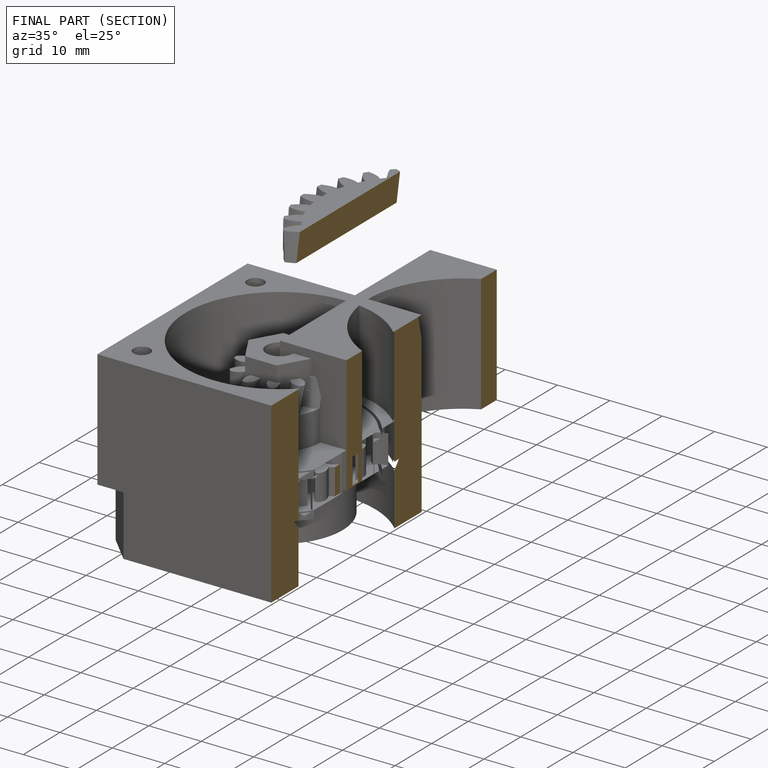
[diagram: finished part — half-section view (interior)]
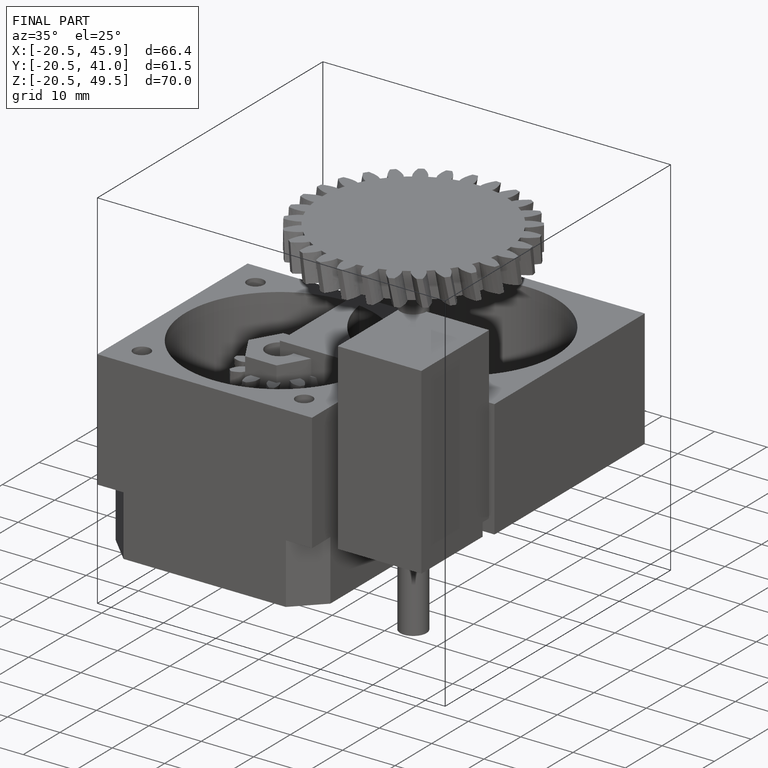
[diagram: finished part — iso view with bounding-box wireframe]
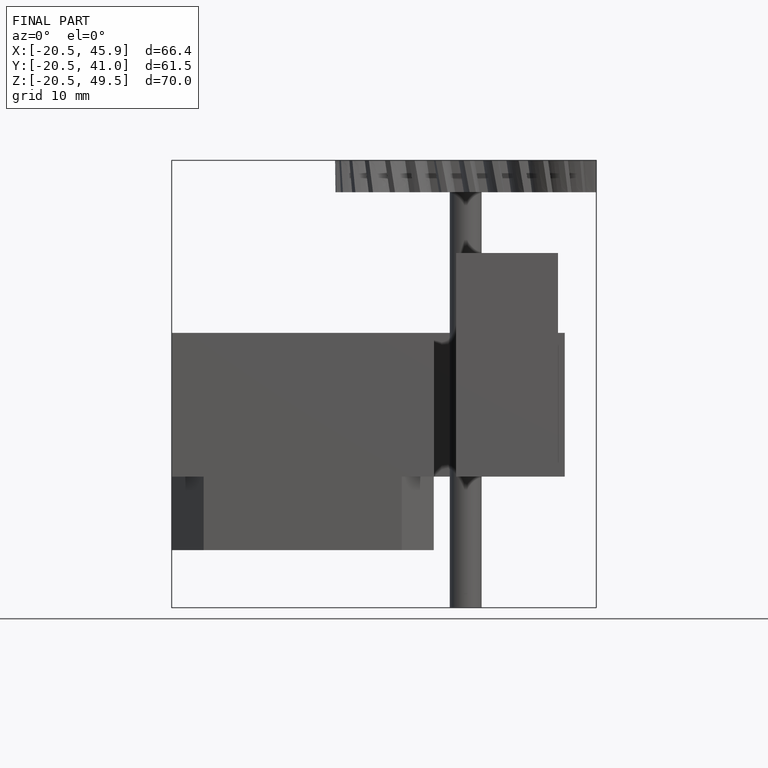
[diagram: finished part — front view with bounding-box wireframe]
